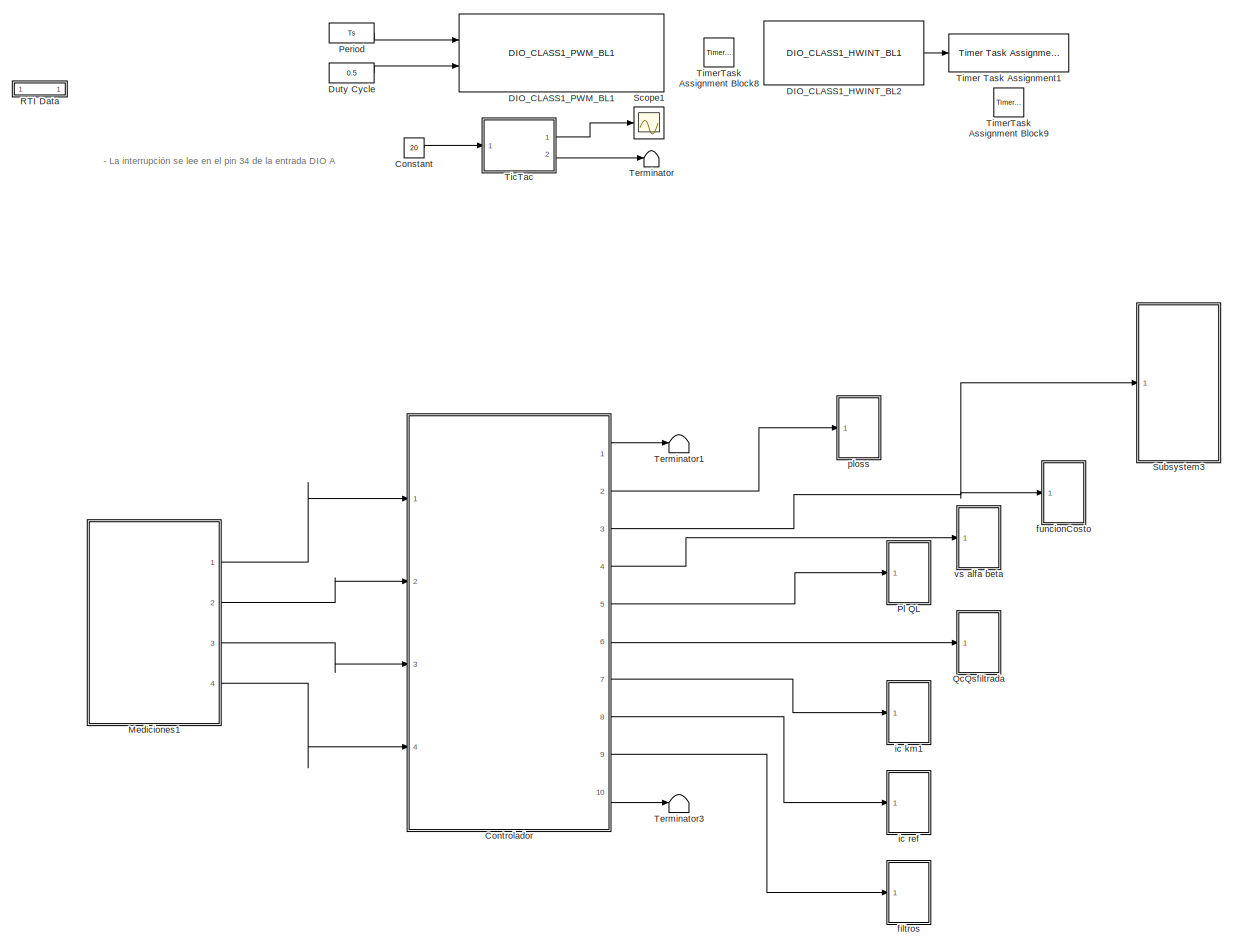
[diagram: root canvas - part 1/1, most of the canvas]
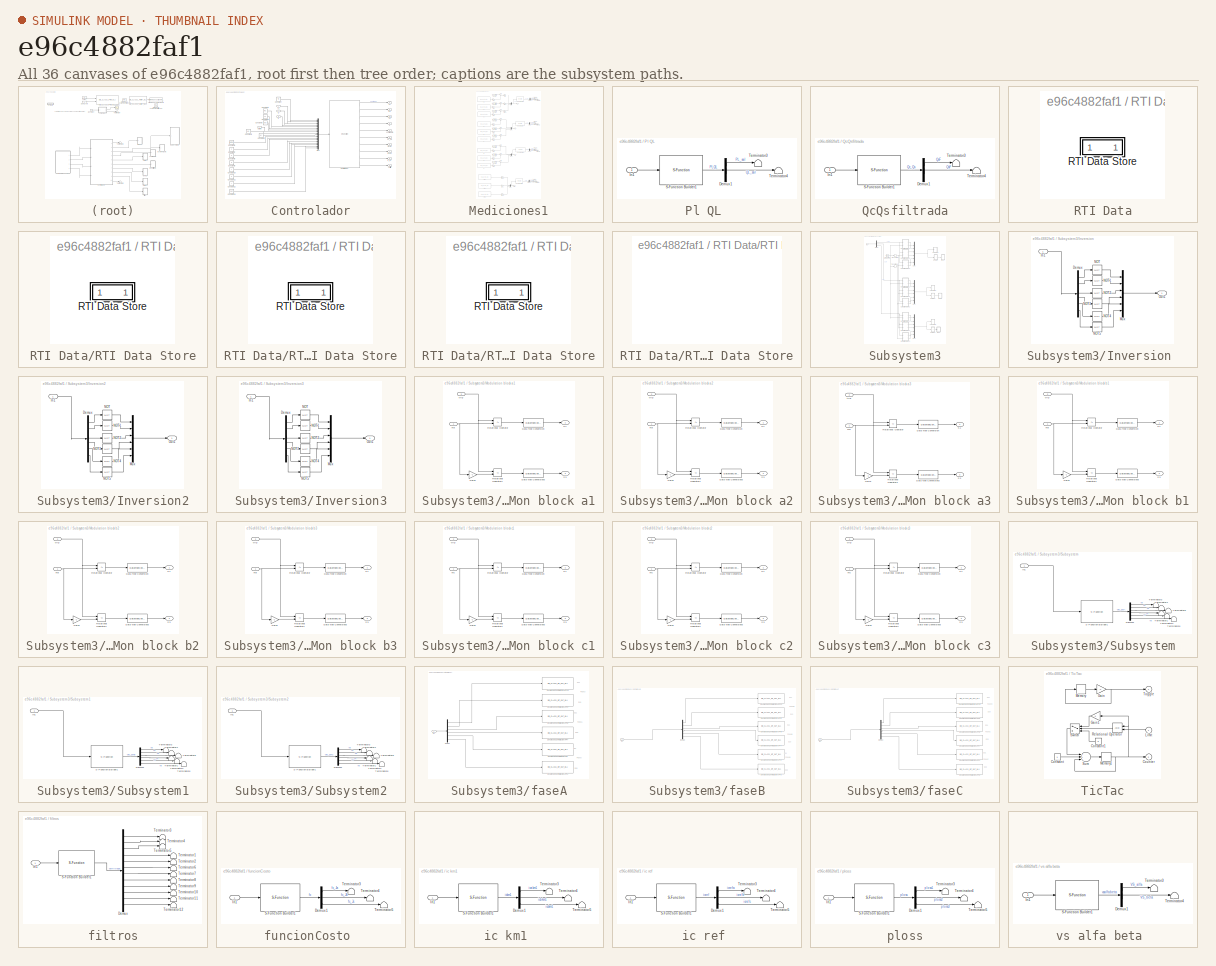
[diagram: thumbnail index - all 36 canvases of the model, root first then tree order]
MODEL slx_e96c4882faf1
KIND model
CONFIG AbsTol = auto
CONFIG EnableMultiTasking = off
CONFIG FixedStep = Tm
CONFIG MaxStep = auto
CONFIG MinStep = auto
CONFIG PostLoadFcn = , if any(exist('dsrtsu_mdlpostloadfcn', 'file') == [2, 3, 6]), try dsrtsu_mdlpostloadfcn('Execute', bdroot); catch fprintf('Error in PostLoadFcn (dsrtsu_mdlpostloadfcn) for model "%s":\n %s\n', bdroot, lasterr); end, end, \n
CONFIG RelTol = 1e-3
CONFIG SampleTimeConstraint = Unconstrained
CONFIG Solver = FixedStepDiscrete
CONFIG SolverName = FixedStepDiscrete
CONFIG StartTime = 0.0
CONFIG StopTime = inf
BLOCK [Constant] Constant
  Value = 20
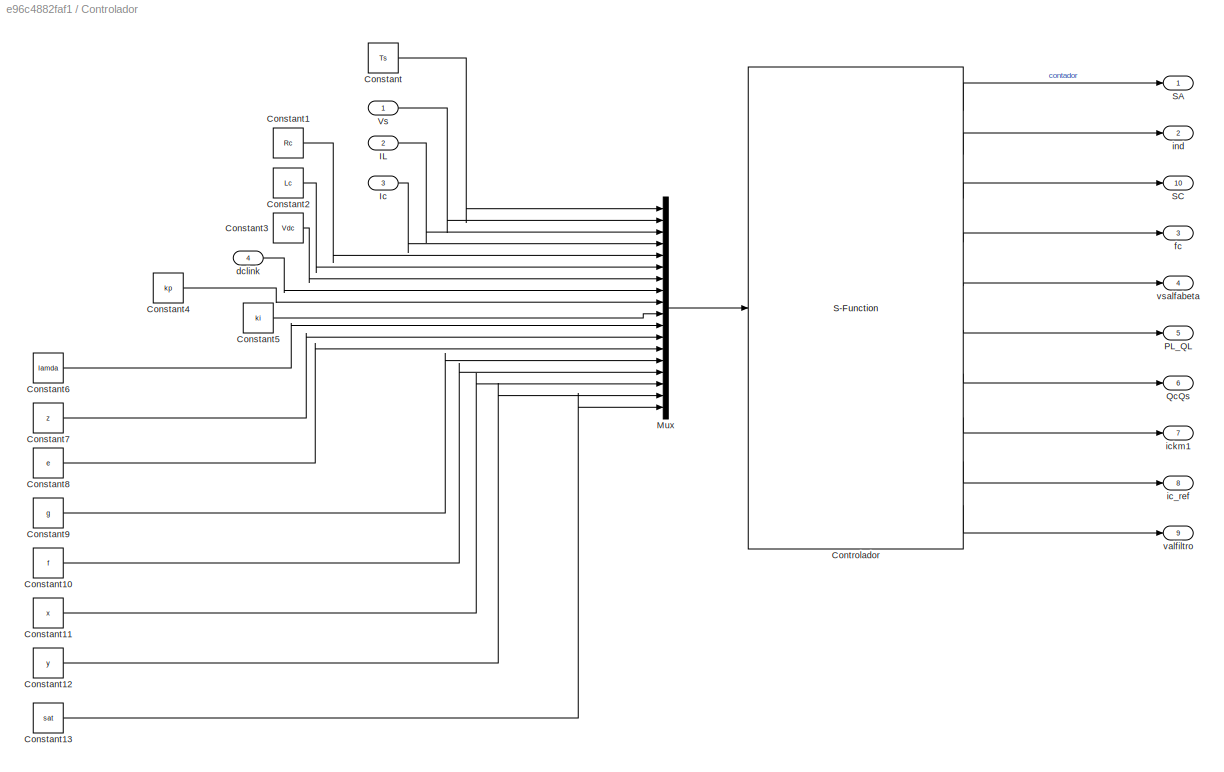
BLOCK [SubSystem] Controlador
  Ports = [4, 10]
  RequestExecContextInheritance = off
BLOCK [Constant] Controlador/Constant
  Value = Ts
BLOCK [Constant] Controlador/Constant1
  Value = Rc
BLOCK [Constant] Controlador/Constant10
  Value = f
BLOCK [Constant] Controlador/Constant11
  Value = x
BLOCK [Constant] Controlador/Constant12
  Value = y
BLOCK [Constant] Controlador/Constant13
  Value = sat
BLOCK [Constant] Controlador/Constant2
  Value = Lc
BLOCK [Constant] Controlador/Constant3
  Value = Vdc
BLOCK [Constant] Controlador/Constant4
  Value = kp
BLOCK [Constant] Controlador/Constant5
  Value = ki
BLOCK [Constant] Controlador/Constant6
  Value = lamda
BLOCK [Constant] Controlador/Constant7
  Value = z
BLOCK [Constant] Controlador/Constant8
  Value = e
BLOCK [Constant] Controlador/Constant9
  Value = g
BLOCK [S-Function] Controlador/Controlador
  CopyFcn = set_param(gcbh,'LinkStatus','none')
  EnableBusSupport = off
  FunctionName = Control_APF7_algoritmo
  InitFcn = try, set_param(gcb,'FunctionName','Control_APF7_algoritmo'), end
  OpenFcn = sfunctionwizard(gcbh)
  Ports = [1, 10]
  PreSaveFcn = try, set_param(gcb,'FunctionName','Control_APF7_algoritmo'), end
  SFcnIsStateOwnerBlock = off
  SFunctionDeploymentMode = off
  SFunctionModules = Control_APF7_algoritmo_wrapper
BLOCK [Inport] Controlador/IL
  IconDisplay = Port number
  Port = 2
BLOCK [Inport] Controlador/Ic
  IconDisplay = Port number
  Port = 3
BLOCK [Mux] Controlador/Mux
  DisplayOption = bar
  Inputs = 18
  Ports = [18, 1]
BLOCK [Outport] Controlador/PL_QL
  IconDisplay = Port number
  Port = 5
BLOCK [Outport] Controlador/QcQs
  IconDisplay = Port number
  Port = 6
BLOCK [Outport] Controlador/SA
  IconDisplay = Port number
BLOCK [Outport] Controlador/SC
  IconDisplay = Port number
  Port = 10
BLOCK [Inport] Controlador/Vs
  IconDisplay = Port number
BLOCK [Inport] Controlador/dclink
  IconDisplay = Port number
  Port = 4
BLOCK [Outport] Controlador/fc
  IconDisplay = Port number
  Port = 3
BLOCK [Outport] Controlador/ic_ref
  IconDisplay = Port number
  Port = 8
BLOCK [Outport] Controlador/ickm1
  IconDisplay = Port number
  Port = 7
BLOCK [Outport] Controlador/ind
  IconDisplay = Port number
  Port = 2
BLOCK [Outport] Controlador/valfiltro
  IconDisplay = Port number
  Port = 9
BLOCK [Outport] Controlador/vsalfabeta
  IconDisplay = Port number
  Port = 4
BLOCK [Reference] DIO_CLASS1_HWINT_BL2  REF=rti1202lib_dio_class1/DIO_CLASS1_HWINT_BL1
  Ports = [0, 1]
  SourceBlock = rti1202lib_dio_class1/DIO_CLASS1_HWINT_BL1
  SourceType = RTI
BLOCK [Reference] DIO_CLASS1_PWM_BL1  REF=rti1202lib_dio_class1/DIO_CLASS1_PWM_BL1
  Ports = [2]
  SourceBlock = rti1202lib_dio_class1/DIO_CLASS1_PWM_BL1
  SourceType = RTI
BLOCK [Constant] Duty Cycle
  Value = 0.5
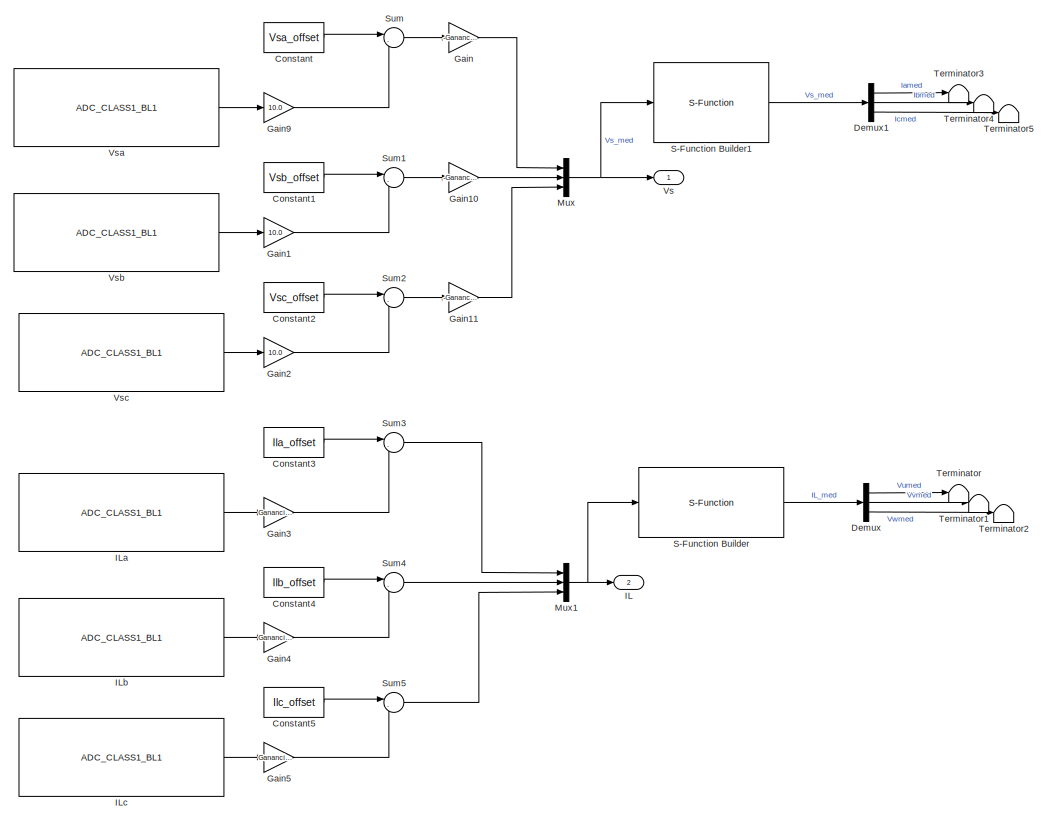
[diagram: Mediciones1 - part 1/2, full width, top band]
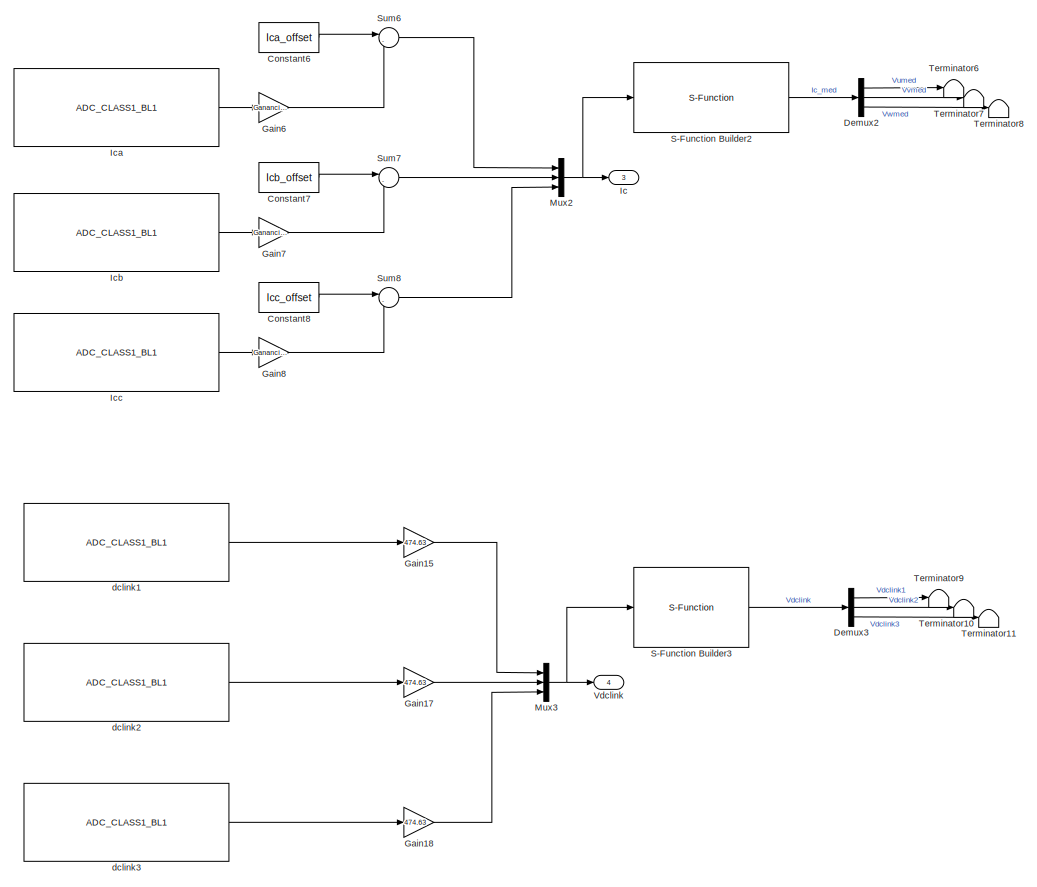
[diagram: Mediciones1 - part 2/2, full width, bottom band]
BLOCK [SubSystem] Mediciones1
  Ports = [0, 4]
  RequestExecContextInheritance = off
BLOCK [Constant] Mediciones1/Constant
  Value = Vsa_offset
BLOCK [Constant] Mediciones1/Constant1
  Value = Vsb_offset
BLOCK [Constant] Mediciones1/Constant2
  Value = Vsc_offset
BLOCK [Constant] Mediciones1/Constant3
  Value = Ila_offset
BLOCK [Constant] Mediciones1/Constant4
  Value = Ilb_offset
BLOCK [Constant] Mediciones1/Constant5
  Value = Ilc_offset
BLOCK [Constant] Mediciones1/Constant6
  Value = Ica_offset
BLOCK [Constant] Mediciones1/Constant7
  Value = Icb_offset
BLOCK [Constant] Mediciones1/Constant8
  Value = Icc_offset
BLOCK [Demux] Mediciones1/Demux
  DisplayOption = bar
  Outputs = 3
  Ports = [1, 3]
BLOCK [Demux] Mediciones1/Demux1
  DisplayOption = bar
  Outputs = 3
  Ports = [1, 3]
BLOCK [Demux] Mediciones1/Demux2
  DisplayOption = bar
  Outputs = 3
  Ports = [1, 3]
BLOCK [Demux] Mediciones1/Demux3
  DisplayOption = bar
  Outputs = 3
  Ports = [1, 3]
BLOCK [Gain] Mediciones1/Gain
  Gain = -Ganancia_Vsa
  OutDataTypeStr = Inherit: Inherit via internal rule
  ParamDataTypeStr = Inherit: Inherit via internal rule
  SaturateOnIntegerOverflow = off
BLOCK [Gain] Mediciones1/Gain1
  Gain = 10.0
  OutDataTypeStr = Inherit: Inherit via internal rule
  ParamDataTypeStr = Inherit: Inherit via internal rule
  SaturateOnIntegerOverflow = off
BLOCK [Gain] Mediciones1/Gain10
  Gain = -Ganancia_Vsb
  OutDataTypeStr = Inherit: Inherit via internal rule
  ParamDataTypeStr = Inherit: Inherit via internal rule
  SaturateOnIntegerOverflow = off
BLOCK [Gain] Mediciones1/Gain11
  Gain = -Ganancia_Vsc
  OutDataTypeStr = Inherit: Inherit via internal rule
  ParamDataTypeStr = Inherit: Inherit via internal rule
  SaturateOnIntegerOverflow = off
BLOCK [Gain] Mediciones1/Gain15
  Gain = 474.63
  OutDataTypeStr = Inherit: Inherit via internal rule
  ParamDataTypeStr = Inherit: Inherit via internal rule
  SaturateOnIntegerOverflow = off
BLOCK [Gain] Mediciones1/Gain17
  Gain = 474.63
  OutDataTypeStr = Inherit: Inherit via internal rule
  ParamDataTypeStr = Inherit: Inherit via internal rule
  SaturateOnIntegerOverflow = off
BLOCK [Gain] Mediciones1/Gain18
  Gain = 474.63
  OutDataTypeStr = Inherit: Inherit via internal rule
  ParamDataTypeStr = Inherit: Inherit via internal rule
  SaturateOnIntegerOverflow = off
BLOCK [Gain] Mediciones1/Gain2
  Gain = 10.0
  OutDataTypeStr = Inherit: Inherit via internal rule
  ParamDataTypeStr = Inherit: Inherit via internal rule
  SaturateOnIntegerOverflow = off
BLOCK [Gain] Mediciones1/Gain3
  Gain = Ganancia_Ila
  OutDataTypeStr = Inherit: Inherit via internal rule
  ParamDataTypeStr = Inherit: Inherit via internal rule
  SaturateOnIntegerOverflow = off
BLOCK [Gain] Mediciones1/Gain4
  Gain = Ganancia_Ilb
  OutDataTypeStr = Inherit: Inherit via internal rule
  ParamDataTypeStr = Inherit: Inherit via internal rule
  SaturateOnIntegerOverflow = off
BLOCK [Gain] Mediciones1/Gain5
  Gain = Ganancia_Ilc
  OutDataTypeStr = Inherit: Inherit via internal rule
  ParamDataTypeStr = Inherit: Inherit via internal rule
  SaturateOnIntegerOverflow = off
BLOCK [Gain] Mediciones1/Gain6
  Gain = Ganancia_Ica
  OutDataTypeStr = Inherit: Inherit via internal rule
  ParamDataTypeStr = Inherit: Inherit via internal rule
  SaturateOnIntegerOverflow = off
BLOCK [Gain] Mediciones1/Gain7
  Gain = Ganancia_Icb
  OutDataTypeStr = Inherit: Inherit via internal rule
  ParamDataTypeStr = Inherit: Inherit via internal rule
  SaturateOnIntegerOverflow = off
BLOCK [Gain] Mediciones1/Gain8
  Gain = Ganancia_Icc
  OutDataTypeStr = Inherit: Inherit via internal rule
  ParamDataTypeStr = Inherit: Inherit via internal rule
  SaturateOnIntegerOverflow = off
BLOCK [Gain] Mediciones1/Gain9
  Gain = 10.0
  OutDataTypeStr = Inherit: Inherit via internal rule
  ParamDataTypeStr = Inherit: Inherit via internal rule
  SaturateOnIntegerOverflow = off
BLOCK [Outport] Mediciones1/IL
  IconDisplay = Port number
  Port = 2
BLOCK [Reference] Mediciones1/ILa  REF=rti1202lib_adc_class1/ADC_CLASS1_BL1
  Ports = [0, 1]
  SourceBlock = rti1202lib_adc_class1/ADC_CLASS1_BL1
  SourceType = RTI
BLOCK [Reference] Mediciones1/ILb   REF=rti1202lib_adc_class1/ADC_CLASS1_BL1
  Ports = [0, 1]
  SourceBlock = rti1202lib_adc_class1/ADC_CLASS1_BL1
  SourceType = RTI
BLOCK [Reference] Mediciones1/ILc  REF=rti1202lib_adc_class1/ADC_CLASS1_BL1
  Ports = [0, 1]
  SourceBlock = rti1202lib_adc_class1/ADC_CLASS1_BL1
  SourceType = RTI
BLOCK [Outport] Mediciones1/Ic
  IconDisplay = Port number
  Port = 3
BLOCK [Reference] Mediciones1/Ica  REF=rti1202lib_adc_class1/ADC_CLASS1_BL1
  Ports = [0, 1]
  SourceBlock = rti1202lib_adc_class1/ADC_CLASS1_BL1
  SourceType = RTI
BLOCK [Reference] Mediciones1/Icb  REF=rti1202lib_adc_class1/ADC_CLASS1_BL1
  Ports = [0, 1]
  SourceBlock = rti1202lib_adc_class1/ADC_CLASS1_BL1
  SourceType = RTI
BLOCK [Reference] Mediciones1/Icc  REF=rti1202lib_adc_class1/ADC_CLASS1_BL1
  Ports = [0, 1]
  SourceBlock = rti1202lib_adc_class1/ADC_CLASS1_BL1
  SourceType = RTI
BLOCK [Mux] Mediciones1/Mux
  DisplayOption = bar
  Inputs = 3
  Ports = [3, 1]
BLOCK [Mux] Mediciones1/Mux1
  DisplayOption = bar
  Inputs = 3
  Ports = [3, 1]
BLOCK [Mux] Mediciones1/Mux2
  DisplayOption = bar
  Inputs = 3
  Ports = [3, 1]
BLOCK [Mux] Mediciones1/Mux3
  DisplayOption = bar
  Inputs = 3
  Ports = [3, 1]
BLOCK [S-Function] Mediciones1/S-Function Builder
  CopyFcn = set_param(gcbh,'LinkStatus','none')
  EnableBusSupport = off
  FunctionName = seguidor
  InitFcn = try, set_param(gcb,'FunctionName','seguidor'), end
  OpenFcn = sfunctionwizard(gcbh)
  Ports = [1, 1]
  PreSaveFcn = try, set_param(gcb,'FunctionName','seguidor'), end
  SFcnIsStateOwnerBlock = off
  SFunctionDeploymentMode = off
  SFunctionModules = seguidor_wrapper
BLOCK [S-Function] Mediciones1/S-Function Builder1
  CopyFcn = set_param(gcbh,'LinkStatus','none')
  EnableBusSupport = off
  FunctionName = seguidor
  InitFcn = try, set_param(gcb,'FunctionName','seguidor'), end
  OpenFcn = sfunctionwizard(gcbh)
  Ports = [1, 1]
  PreSaveFcn = try, set_param(gcb,'FunctionName','seguidor'), end
  SFcnIsStateOwnerBlock = off
  SFunctionDeploymentMode = off
  SFunctionModules = seguidor_wrapper
BLOCK [S-Function] Mediciones1/S-Function Builder2
  CopyFcn = set_param(gcbh,'LinkStatus','none')
  EnableBusSupport = off
  FunctionName = seguidor
  InitFcn = try, set_param(gcb,'FunctionName','seguidor'), end
  OpenFcn = sfunctionwizard(gcbh)
  Ports = [1, 1]
  PreSaveFcn = try, set_param(gcb,'FunctionName','seguidor'), end
  SFcnIsStateOwnerBlock = off
  SFunctionDeploymentMode = off
  SFunctionModules = seguidor_wrapper
BLOCK [S-Function] Mediciones1/S-Function Builder3
  CopyFcn = set_param(gcbh,'LinkStatus','none')
  EnableBusSupport = off
  FunctionName = seguidor
  InitFcn = try, set_param(gcb,'FunctionName','seguidor'), end
  OpenFcn = sfunctionwizard(gcbh)
  Ports = [1, 1]
  PreSaveFcn = try, set_param(gcb,'FunctionName','seguidor'), end
  SFcnIsStateOwnerBlock = off
  SFunctionDeploymentMode = off
  SFunctionModules = seguidor_wrapper
BLOCK [Sum] Mediciones1/Sum
  IconShape = round
  InputSameDT = off
  Inputs = |-+
  OutDataTypeStr = Inherit: Inherit via internal rule
  Ports = [2, 1]
  SaturateOnIntegerOverflow = off
BLOCK [Sum] Mediciones1/Sum1
  IconShape = round
  InputSameDT = off
  Inputs = |-+
  OutDataTypeStr = Inherit: Inherit via internal rule
  Ports = [2, 1]
  SaturateOnIntegerOverflow = off
BLOCK [Sum] Mediciones1/Sum2
  IconShape = round
  InputSameDT = off
  Inputs = |-+
  OutDataTypeStr = Inherit: Inherit via internal rule
  Ports = [2, 1]
  SaturateOnIntegerOverflow = off
BLOCK [Sum] Mediciones1/Sum3
  IconShape = round
  InputSameDT = off
  Inputs = |-+
  OutDataTypeStr = Inherit: Inherit via internal rule
  Ports = [2, 1]
  SaturateOnIntegerOverflow = off
BLOCK [Sum] Mediciones1/Sum4
  IconShape = round
  InputSameDT = off
  Inputs = |-+
  OutDataTypeStr = Inherit: Inherit via internal rule
  Ports = [2, 1]
  SaturateOnIntegerOverflow = off
BLOCK [Sum] Mediciones1/Sum5
  IconShape = round
  InputSameDT = off
  Inputs = |-+
  OutDataTypeStr = Inherit: Inherit via internal rule
  Ports = [2, 1]
  SaturateOnIntegerOverflow = off
BLOCK [Sum] Mediciones1/Sum6
  IconShape = round
  InputSameDT = off
  Inputs = |-+
  OutDataTypeStr = Inherit: Inherit via internal rule
  Ports = [2, 1]
  SaturateOnIntegerOverflow = off
BLOCK [Sum] Mediciones1/Sum7
  IconShape = round
  InputSameDT = off
  Inputs = |-+
  OutDataTypeStr = Inherit: Inherit via internal rule
  Ports = [2, 1]
  SaturateOnIntegerOverflow = off
BLOCK [Sum] Mediciones1/Sum8
  IconShape = round
  InputSameDT = off
  Inputs = |-+
  OutDataTypeStr = Inherit: Inherit via internal rule
  Ports = [2, 1]
  SaturateOnIntegerOverflow = off
BLOCK [Terminator] Mediciones1/Terminator
BLOCK [Terminator] Mediciones1/Terminator1
BLOCK [Terminator] Mediciones1/Terminator10
BLOCK [Terminator] Mediciones1/Terminator11
BLOCK [Terminator] Mediciones1/Terminator2
BLOCK [Terminator] Mediciones1/Terminator3
BLOCK [Terminator] Mediciones1/Terminator4
BLOCK [Terminator] Mediciones1/Terminator5
BLOCK [Terminator] Mediciones1/Terminator6
BLOCK [Terminator] Mediciones1/Terminator7
BLOCK [Terminator] Mediciones1/Terminator8
BLOCK [Terminator] Mediciones1/Terminator9
BLOCK [Outport] Mediciones1/Vdclink
  IconDisplay = Port number
  Port = 4
BLOCK [Outport] Mediciones1/Vs
  IconDisplay = Port number
BLOCK [Reference] Mediciones1/Vsa  REF=rti1202lib_adc_class1/ADC_CLASS1_BL1
  Ports = [0, 1]
  SourceBlock = rti1202lib_adc_class1/ADC_CLASS1_BL1
  SourceType = RTI
BLOCK [Reference] Mediciones1/Vsb  REF=rti1202lib_adc_class1/ADC_CLASS1_BL1
  Ports = [0, 1]
  SourceBlock = rti1202lib_adc_class1/ADC_CLASS1_BL1
  SourceType = RTI
BLOCK [Reference] Mediciones1/Vsc  REF=rti1202lib_adc_class1/ADC_CLASS1_BL1
  Ports = [0, 1]
  SourceBlock = rti1202lib_adc_class1/ADC_CLASS1_BL1
  SourceType = RTI
BLOCK [Reference] Mediciones1/dclink1  REF=rti1202lib_adc_class1/ADC_CLASS1_BL1
  Ports = [0, 1]
  SourceBlock = rti1202lib_adc_class1/ADC_CLASS1_BL1
  SourceType = RTI
BLOCK [Reference] Mediciones1/dclink2  REF=rti1202lib_adc_class1/ADC_CLASS1_BL1
  Ports = [0, 1]
  SourceBlock = rti1202lib_adc_class1/ADC_CLASS1_BL1
  SourceType = RTI
BLOCK [Reference] Mediciones1/dclink3  REF=rti1202lib_adc_class1/ADC_CLASS1_BL1
  Ports = [0, 1]
  SourceBlock = rti1202lib_adc_class1/ADC_CLASS1_BL1
  SourceType = RTI
BLOCK [Constant] Period
  Value = Ts
BLOCK [SubSystem] Pl QL 
  Ports = [1]
  RequestExecContextInheritance = off
BLOCK [Demux] Pl QL /Demux1
  DisplayOption = bar
  Outputs = 2
  Ports = [1, 2]
BLOCK [Inport] Pl QL /In1
  IconDisplay = Port number
BLOCK [S-Function] Pl QL /S-Function Builder1
  CopyFcn = set_param(gcbh,'LinkStatus','none')
  EnableBusSupport = off
  FunctionName = seguidor_2S
  InitFcn = try, set_param(gcb,'FunctionName','seguidor_2S'), end
  OpenFcn = sfunctionwizard(gcbh)
  Ports = [1, 1]
  PreSaveFcn = try, set_param(gcb,'FunctionName','seguidor_2S'), end
  SFcnIsStateOwnerBlock = off
  SFunctionDeploymentMode = off
  SFunctionModules = seguidor_2S_wrapper
BLOCK [Terminator] Pl QL /Terminator3
BLOCK [Terminator] Pl QL /Terminator4
BLOCK [SubSystem] QcQsfiltrada
  Ports = [1]
  RequestExecContextInheritance = off
BLOCK [Demux] QcQsfiltrada/Demux1
  DisplayOption = bar
  Outputs = 2
  Ports = [1, 2]
BLOCK [Inport] QcQsfiltrada/In1
  IconDisplay = Port number
BLOCK [S-Function] QcQsfiltrada/S-Function Builder1
  CopyFcn = set_param(gcbh,'LinkStatus','none')
  EnableBusSupport = off
  FunctionName = seguidor_2S
  InitFcn = try, set_param(gcb,'FunctionName','seguidor_2S'), end
  OpenFcn = sfunctionwizard(gcbh)
  Ports = [1, 1]
  PreSaveFcn = try, set_param(gcb,'FunctionName','seguidor_2S'), end
  SFcnIsStateOwnerBlock = off
  SFunctionDeploymentMode = off
  SFunctionModules = seguidor_2S_wrapper
BLOCK [Terminator] QcQsfiltrada/Terminator3
BLOCK [Terminator] QcQsfiltrada/Terminator4
BLOCK [SubSystem] RTI Data
  CopyFcn = if exist('rtidc'), try,  rtidc('DataHostBlockClbCopy', gcbh); catch, disp(['Warning: ''CopyFcn'' for RTI Data block failed: ' lasterr]); end, end,
  DeleteFcn = if exist('rtidc'), try,  rtidc('DataHostBlockClbDelete', gcbh); catch, disp(['Warning: ''DeleteFcn'' for RTI Data block failed: ' lasterr]); end, end,
  LoadFcn = if exist('rtidc'), try,  rtidc('DataHostBlockClbLoad', gcbh); catch, disp(['Warning: ''LoadFcn'' for RTI Data block failed: ' lasterr]); end, end,
  ModelCloseFcn = if exist('rtidc'), try,  rtidc('DataHostBlockClbModelClose', gcbh); catch, disp(['Warning: ''ModelCloseFcn'' for RTI Data block failed: ' lasterr]); end, end,
  NameChangeFcn = if exist('rtidc'), try,  rtidc('DataHostBlockClbNameChange', gcbh); catch, disp(['Warning: ''NameChangeFcn'' for RTI Data block failed: ' lasterr]); end, end,
  Ports = []
  PostSaveFcn = if exist('rtidc'), try,  rtidc('DataHostBlockClbPostSave', gcbh); catch, disp(['Warning: ''PostSaveFcn'' for RTI Data block failed: ' lasterr]); end, end,
  PreSaveFcn = if exist('rtidc'), try,  rtidc('DataHostBlockClbPreSave', gcbh); catch, disp(['Warning: ''PreSaveFcn'' for RTI Data block failed: ' lasterr]); end, end,
  RequestExecContextInheritance = off
  Tag = struct('RTIDataServer',struct('RTIDataServerVs','2','RTIModelDescription','struct(''main'',''Control_APF7_nuevo_MicroLabBox'',''sub'','''',''isMp'',0)'))
BLOCK [SubSystem] RTI Data/RTI Data Store
  Ports = []
  RequestExecContextInheritance = off
  Tag = struct('private',struct('version',struct('dsVer',uint32(2),'dsVerCreation',uint32(2),'RTI',struct('ver','7.10','type','RTI1202')),'access',struct('type','Model','isPerm',1,'created',['09-Feb-2019 11:07:17'],'modified',['07-Aug-2020 15:11:09'],'location','')),'public',struct('main',struct('data',[]),'sub',struct('name',{{'Control_APF7_nuevo_MicroLabBox'}},'data',{{struct('TH',struct('thTaskInfo',st...<+1229ch>
BLOCK [SubSystem] RTI Data/RTI Data Store/RTI Data Store
  Ports = []
  RequestExecContextInheritance = off
BLOCK [SubSystem] RTI Data/RTI Data Store/RTI Data Store/RTI Data Store
  Ports = []
  RequestExecContextInheritance = off
BLOCK [SubSystem] RTI Data/RTI Data Store/RTI Data Store/RTI Data Store/RTI Data Store
  Ports = []
  RequestExecContextInheritance = off
BLOCK [Scope] Scope1
  Floating = off
  NumInputPorts = 1
  Ports = [1]
  ScopeSpecificationString = Simulink.scopes.TimeScopeBlockCfg('CurrentConfiguration', extmgr.ConfigurationSet(extmgr.Configuration('Core','General UI',true),extmgr.Configuration('Core','Source UI',true),extmgr.Configuration('Sources','WiredSimulink',true,'DataLoggingSaveFormat','StructureWithTime','DataLoggingLimitDataPoints',true,'DataLoggingDecimation','1','DataLoggingDecimateData',true,'DataLoggingVariableName','ScopeData...<+911ch>
BLOCK [SubSystem] Subsystem3
  Ports = [1]
  RequestExecContextInheritance = off
BLOCK [Demux] Subsystem3/Demux
  DisplayOption = bar
  Outputs = 3
  Ports = [1, 3]
BLOCK [Inport] Subsystem3/In1
  IconDisplay = Port number
BLOCK [SubSystem] Subsystem3/Inversion 
  Ports = [1, 1]
  RequestExecContextInheritance = off
BLOCK [Demux] Subsystem3/Inversion /Demux
  DisplayOption = bar
  Outputs = 6
  Ports = [1, 6]
BLOCK [Inport] Subsystem3/Inversion /In1
  IconDisplay = Port number
BLOCK [Mux] Subsystem3/Inversion /Mux
  DisplayOption = bar
  Inputs = 6
  Ports = [6, 1]
BLOCK [Logic] Subsystem3/Inversion /NOT
  AllPortsSameDT = off
  IconShape = distinctive
  Operator = NOT
  OutDataTypeStr = boolean
  Ports = [1, 1]
BLOCK [Logic] Subsystem3/Inversion /NOT1
  AllPortsSameDT = off
  IconShape = distinctive
  Operator = NOT
  OutDataTypeStr = boolean
  Ports = [1, 1]
BLOCK [Logic] Subsystem3/Inversion /NOT2
  AllPortsSameDT = off
  IconShape = distinctive
  Operator = NOT
  OutDataTypeStr = boolean
  Ports = [1, 1]
BLOCK [Logic] Subsystem3/Inversion /NOT3
  AllPortsSameDT = off
  IconShape = distinctive
  Operator = NOT
  OutDataTypeStr = boolean
  Ports = [1, 1]
BLOCK [Logic] Subsystem3/Inversion /NOT4
  AllPortsSameDT = off
  IconShape = distinctive
  Operator = NOT
  OutDataTypeStr = boolean
  Ports = [1, 1]
BLOCK [Logic] Subsystem3/Inversion /NOT5
  AllPortsSameDT = off
  IconShape = distinctive
  Operator = NOT
  OutDataTypeStr = boolean
  Ports = [1, 1]
BLOCK [Outport] Subsystem3/Inversion /Out1
  IconDisplay = Port number
BLOCK [SubSystem] Subsystem3/Inversion2
  Ports = [1, 1]
  RequestExecContextInheritance = off
BLOCK [Demux] Subsystem3/Inversion2/Demux
  DisplayOption = bar
  Outputs = 6
  Ports = [1, 6]
BLOCK [Inport] Subsystem3/Inversion2/In1
  IconDisplay = Port number
BLOCK [Mux] Subsystem3/Inversion2/Mux
  DisplayOption = bar
  Inputs = 6
  Ports = [6, 1]
BLOCK [Logic] Subsystem3/Inversion2/NOT
  AllPortsSameDT = off
  IconShape = distinctive
  Operator = NOT
  OutDataTypeStr = boolean
  Ports = [1, 1]
BLOCK [Logic] Subsystem3/Inversion2/NOT1
  AllPortsSameDT = off
  IconShape = distinctive
  Operator = NOT
  OutDataTypeStr = boolean
  Ports = [1, 1]
BLOCK [Logic] Subsystem3/Inversion2/NOT2
  AllPortsSameDT = off
  IconShape = distinctive
  Operator = NOT
  OutDataTypeStr = boolean
  Ports = [1, 1]
BLOCK [Logic] Subsystem3/Inversion2/NOT3
  AllPortsSameDT = off
  IconShape = distinctive
  Operator = NOT
  OutDataTypeStr = boolean
  Ports = [1, 1]
BLOCK [Logic] Subsystem3/Inversion2/NOT4
  AllPortsSameDT = off
  IconShape = distinctive
  Operator = NOT
  OutDataTypeStr = boolean
  Ports = [1, 1]
BLOCK [Logic] Subsystem3/Inversion2/NOT5
  AllPortsSameDT = off
  IconShape = distinctive
  Operator = NOT
  OutDataTypeStr = boolean
  Ports = [1, 1]
BLOCK [Outport] Subsystem3/Inversion2/Out1
  IconDisplay = Port number
BLOCK [SubSystem] Subsystem3/Inversion3
  Ports = [1, 1]
  RequestExecContextInheritance = off
BLOCK [Demux] Subsystem3/Inversion3/Demux
  DisplayOption = bar
  Outputs = 6
  Ports = [1, 6]
BLOCK [Inport] Subsystem3/Inversion3/In1
  IconDisplay = Port number
BLOCK [Mux] Subsystem3/Inversion3/Mux
  DisplayOption = bar
  Inputs = 6
  Ports = [6, 1]
BLOCK [Logic] Subsystem3/Inversion3/NOT
  AllPortsSameDT = off
  IconShape = distinctive
  Operator = NOT
  OutDataTypeStr = boolean
  Ports = [1, 1]
BLOCK [Logic] Subsystem3/Inversion3/NOT1
  AllPortsSameDT = off
  IconShape = distinctive
  Operator = NOT
  OutDataTypeStr = boolean
  Ports = [1, 1]
BLOCK [Logic] Subsystem3/Inversion3/NOT2
  AllPortsSameDT = off
  IconShape = distinctive
  Operator = NOT
  OutDataTypeStr = boolean
  Ports = [1, 1]
BLOCK [Logic] Subsystem3/Inversion3/NOT3
  AllPortsSameDT = off
  IconShape = distinctive
  Operator = NOT
  OutDataTypeStr = boolean
  Ports = [1, 1]
BLOCK [Logic] Subsystem3/Inversion3/NOT4
  AllPortsSameDT = off
  IconShape = distinctive
  Operator = NOT
  OutDataTypeStr = boolean
  Ports = [1, 1]
BLOCK [Logic] Subsystem3/Inversion3/NOT5
  AllPortsSameDT = off
  IconShape = distinctive
  Operator = NOT
  OutDataTypeStr = boolean
  Ports = [1, 1]
BLOCK [Outport] Subsystem3/Inversion3/Out1
  IconDisplay = Port number
BLOCK [SubSystem] Subsystem3/Modulation block a1
  Ports = [2, 2]
  RequestExecContextInheritance = off
BLOCK [DataTypeConversion] Subsystem3/Modulation block a1/Data Type Conversion
  OutDataTypeStr = double
  RndMeth = Floor
  SaturateOnIntegerOverflow = off
BLOCK [DataTypeConversion] Subsystem3/Modulation block a1/Data Type Conversion3
  OutDataTypeStr = double
  RndMeth = Floor
  SaturateOnIntegerOverflow = off
BLOCK [Gain] Subsystem3/Modulation block a1/Gain1
  Gain = -1
  OutDataTypeStr = Inherit: Inherit via internal rule
  ParamDataTypeStr = Inherit: Inherit via internal rule
  SaturateOnIntegerOverflow = off
BLOCK [RelationalOperator] Subsystem3/Modulation block a1/Relational Operator
  InputSameDT = off
  Operator = <=
  OutDataTypeStr = boolean
  Ports = [2, 1]
BLOCK [RelationalOperator] Subsystem3/Modulation block a1/Relational Operator2
  InputSameDT = off
  Operator = <=
  OutDataTypeStr = boolean
  Ports = [2, 1]
BLOCK [Outport] Subsystem3/Modulation block a1/S1
  IconDisplay = Port number
BLOCK [Outport] Subsystem3/Modulation block a1/S3
  IconDisplay = Port number
  Port = 2
BLOCK [Inport] Subsystem3/Modulation block a1/ma
  IconDisplay = Port number
BLOCK [Inport] Subsystem3/Modulation block a1/trig
  IconDisplay = Port number
  Port = 2
BLOCK [SubSystem] Subsystem3/Modulation block a2
  Ports = [2, 2]
  RequestExecContextInheritance = off
BLOCK [DataTypeConversion] Subsystem3/Modulation block a2/Data Type Conversion
  OutDataTypeStr = double
  RndMeth = Floor
  SaturateOnIntegerOverflow = off
BLOCK [DataTypeConversion] Subsystem3/Modulation block a2/Data Type Conversion3
  OutDataTypeStr = double
  RndMeth = Floor
  SaturateOnIntegerOverflow = off
BLOCK [Gain] Subsystem3/Modulation block a2/Gain1
  Gain = -1
  OutDataTypeStr = Inherit: Inherit via internal rule
  ParamDataTypeStr = Inherit: Inherit via internal rule
  SaturateOnIntegerOverflow = off
BLOCK [RelationalOperator] Subsystem3/Modulation block a2/Relational Operator
  InputSameDT = off
  Operator = <=
  OutDataTypeStr = boolean
  Ports = [2, 1]
BLOCK [RelationalOperator] Subsystem3/Modulation block a2/Relational Operator2
  InputSameDT = off
  Operator = <=
  OutDataTypeStr = boolean
  Ports = [2, 1]
BLOCK [Outport] Subsystem3/Modulation block a2/S1
  IconDisplay = Port number
BLOCK [Outport] Subsystem3/Modulation block a2/S3
  IconDisplay = Port number
  Port = 2
BLOCK [Inport] Subsystem3/Modulation block a2/ma
  IconDisplay = Port number
BLOCK [Inport] Subsystem3/Modulation block a2/trig
  IconDisplay = Port number
  Port = 2
BLOCK [SubSystem] Subsystem3/Modulation block a3
  Ports = [2, 2]
  RequestExecContextInheritance = off
BLOCK [DataTypeConversion] Subsystem3/Modulation block a3/Data Type Conversion
  OutDataTypeStr = double
  RndMeth = Floor
  SaturateOnIntegerOverflow = off
BLOCK [DataTypeConversion] Subsystem3/Modulation block a3/Data Type Conversion3
  OutDataTypeStr = double
  RndMeth = Floor
  SaturateOnIntegerOverflow = off
BLOCK [Gain] Subsystem3/Modulation block a3/Gain1
  Gain = -1
  OutDataTypeStr = Inherit: Inherit via internal rule
  ParamDataTypeStr = Inherit: Inherit via internal rule
  SaturateOnIntegerOverflow = off
BLOCK [RelationalOperator] Subsystem3/Modulation block a3/Relational Operator
  InputSameDT = off
  Operator = <=
  OutDataTypeStr = boolean
  Ports = [2, 1]
BLOCK [RelationalOperator] Subsystem3/Modulation block a3/Relational Operator2
  InputSameDT = off
  Operator = <=
  OutDataTypeStr = boolean
  Ports = [2, 1]
BLOCK [Outport] Subsystem3/Modulation block a3/S1
  IconDisplay = Port number
BLOCK [Outport] Subsystem3/Modulation block a3/S3
  IconDisplay = Port number
  Port = 2
BLOCK [Inport] Subsystem3/Modulation block a3/ma
  IconDisplay = Port number
BLOCK [Inport] Subsystem3/Modulation block a3/trig
  IconDisplay = Port number
  Port = 2
BLOCK [SubSystem] Subsystem3/Modulation block b1
  Ports = [2, 2]
  RequestExecContextInheritance = off
BLOCK [DataTypeConversion] Subsystem3/Modulation block b1/Data Type Conversion
  OutDataTypeStr = double
  RndMeth = Floor
  SaturateOnIntegerOverflow = off
BLOCK [DataTypeConversion] Subsystem3/Modulation block b1/Data Type Conversion3
  OutDataTypeStr = double
  RndMeth = Floor
  SaturateOnIntegerOverflow = off
BLOCK [Gain] Subsystem3/Modulation block b1/Gain1
  Gain = -1
  OutDataTypeStr = Inherit: Inherit via internal rule
  ParamDataTypeStr = Inherit: Inherit via internal rule
  SaturateOnIntegerOverflow = off
BLOCK [RelationalOperator] Subsystem3/Modulation block b1/Relational Operator
  InputSameDT = off
  Operator = <=
  OutDataTypeStr = boolean
  Ports = [2, 1]
BLOCK [RelationalOperator] Subsystem3/Modulation block b1/Relational Operator2
  InputSameDT = off
  Operator = <=
  OutDataTypeStr = boolean
  Ports = [2, 1]
BLOCK [Outport] Subsystem3/Modulation block b1/S1
  IconDisplay = Port number
BLOCK [Outport] Subsystem3/Modulation block b1/S3
  IconDisplay = Port number
  Port = 2
BLOCK [Inport] Subsystem3/Modulation block b1/mb
  IconDisplay = Port number
BLOCK [Inport] Subsystem3/Modulation block b1/trig
  IconDisplay = Port number
  Port = 2
BLOCK [SubSystem] Subsystem3/Modulation block b2
  Ports = [2, 2]
  RequestExecContextInheritance = off
BLOCK [DataTypeConversion] Subsystem3/Modulation block b2/Data Type Conversion
  OutDataTypeStr = double
  RndMeth = Floor
  SaturateOnIntegerOverflow = off
BLOCK [DataTypeConversion] Subsystem3/Modulation block b2/Data Type Conversion3
  OutDataTypeStr = double
  RndMeth = Floor
  SaturateOnIntegerOverflow = off
BLOCK [Gain] Subsystem3/Modulation block b2/Gain1
  Gain = -1
  OutDataTypeStr = Inherit: Inherit via internal rule
  ParamDataTypeStr = Inherit: Inherit via internal rule
  SaturateOnIntegerOverflow = off
BLOCK [RelationalOperator] Subsystem3/Modulation block b2/Relational Operator
  InputSameDT = off
  Operator = <=
  OutDataTypeStr = boolean
  Ports = [2, 1]
BLOCK [RelationalOperator] Subsystem3/Modulation block b2/Relational Operator2
  InputSameDT = off
  Operator = <=
  OutDataTypeStr = boolean
  Ports = [2, 1]
BLOCK [Outport] Subsystem3/Modulation block b2/S1
  IconDisplay = Port number
BLOCK [Outport] Subsystem3/Modulation block b2/S3
  IconDisplay = Port number
  Port = 2
BLOCK [Inport] Subsystem3/Modulation block b2/mb
  IconDisplay = Port number
BLOCK [Inport] Subsystem3/Modulation block b2/trig
  IconDisplay = Port number
  Port = 2
BLOCK [SubSystem] Subsystem3/Modulation block b3
  Ports = [2, 2]
  RequestExecContextInheritance = off
BLOCK [DataTypeConversion] Subsystem3/Modulation block b3/Data Type Conversion
  OutDataTypeStr = double
  RndMeth = Floor
  SaturateOnIntegerOverflow = off
BLOCK [DataTypeConversion] Subsystem3/Modulation block b3/Data Type Conversion3
  OutDataTypeStr = double
  RndMeth = Floor
  SaturateOnIntegerOverflow = off
BLOCK [Gain] Subsystem3/Modulation block b3/Gain1
  Gain = -1
  OutDataTypeStr = Inherit: Inherit via internal rule
  ParamDataTypeStr = Inherit: Inherit via internal rule
  SaturateOnIntegerOverflow = off
BLOCK [RelationalOperator] Subsystem3/Modulation block b3/Relational Operator
  InputSameDT = off
  Operator = <=
  OutDataTypeStr = boolean
  Ports = [2, 1]
BLOCK [RelationalOperator] Subsystem3/Modulation block b3/Relational Operator2
  InputSameDT = off
  Operator = <=
  OutDataTypeStr = boolean
  Ports = [2, 1]
BLOCK [Outport] Subsystem3/Modulation block b3/S1
  IconDisplay = Port number
BLOCK [Outport] Subsystem3/Modulation block b3/S3
  IconDisplay = Port number
  Port = 2
BLOCK [Inport] Subsystem3/Modulation block b3/mb
  IconDisplay = Port number
BLOCK [Inport] Subsystem3/Modulation block b3/trig
  IconDisplay = Port number
  Port = 2
BLOCK [SubSystem] Subsystem3/Modulation block c1
  Ports = [2, 2]
  RequestExecContextInheritance = off
BLOCK [DataTypeConversion] Subsystem3/Modulation block c1/Data Type Conversion
  OutDataTypeStr = double
  RndMeth = Floor
  SaturateOnIntegerOverflow = off
BLOCK [DataTypeConversion] Subsystem3/Modulation block c1/Data Type Conversion3
  OutDataTypeStr = double
  RndMeth = Floor
  SaturateOnIntegerOverflow = off
BLOCK [Gain] Subsystem3/Modulation block c1/Gain1
  Gain = -1
  OutDataTypeStr = Inherit: Inherit via internal rule
  ParamDataTypeStr = Inherit: Inherit via internal rule
  SaturateOnIntegerOverflow = off
BLOCK [RelationalOperator] Subsystem3/Modulation block c1/Relational Operator
  InputSameDT = off
  Operator = <=
  OutDataTypeStr = boolean
  Ports = [2, 1]
BLOCK [RelationalOperator] Subsystem3/Modulation block c1/Relational Operator2
  InputSameDT = off
  Operator = <=
  OutDataTypeStr = boolean
  Ports = [2, 1]
BLOCK [Outport] Subsystem3/Modulation block c1/S1
  IconDisplay = Port number
BLOCK [Outport] Subsystem3/Modulation block c1/S3
  IconDisplay = Port number
  Port = 2
BLOCK [Inport] Subsystem3/Modulation block c1/mc
  IconDisplay = Port number
BLOCK [Inport] Subsystem3/Modulation block c1/trig
  IconDisplay = Port number
  Port = 2
BLOCK [SubSystem] Subsystem3/Modulation block c2
  Ports = [2, 2]
  RequestExecContextInheritance = off
BLOCK [DataTypeConversion] Subsystem3/Modulation block c2/Data Type Conversion
  OutDataTypeStr = double
  RndMeth = Floor
  SaturateOnIntegerOverflow = off
BLOCK [DataTypeConversion] Subsystem3/Modulation block c2/Data Type Conversion3
  OutDataTypeStr = double
  RndMeth = Floor
  SaturateOnIntegerOverflow = off
BLOCK [Gain] Subsystem3/Modulation block c2/Gain1
  Gain = -1
  OutDataTypeStr = Inherit: Inherit via internal rule
  ParamDataTypeStr = Inherit: Inherit via internal rule
  SaturateOnIntegerOverflow = off
BLOCK [RelationalOperator] Subsystem3/Modulation block c2/Relational Operator
  InputSameDT = off
  Operator = <=
  OutDataTypeStr = boolean
  Ports = [2, 1]
BLOCK [RelationalOperator] Subsystem3/Modulation block c2/Relational Operator2
  InputSameDT = off
  Operator = <=
  OutDataTypeStr = boolean
  Ports = [2, 1]
BLOCK [Outport] Subsystem3/Modulation block c2/S1
  IconDisplay = Port number
BLOCK [Outport] Subsystem3/Modulation block c2/S3
  IconDisplay = Port number
  Port = 2
BLOCK [Inport] Subsystem3/Modulation block c2/mc
  IconDisplay = Port number
BLOCK [Inport] Subsystem3/Modulation block c2/trig
  IconDisplay = Port number
  Port = 2
BLOCK [SubSystem] Subsystem3/Modulation block c3
  Ports = [2, 2]
  RequestExecContextInheritance = off
BLOCK [DataTypeConversion] Subsystem3/Modulation block c3/Data Type Conversion
  OutDataTypeStr = double
  RndMeth = Floor
  SaturateOnIntegerOverflow = off
BLOCK [DataTypeConversion] Subsystem3/Modulation block c3/Data Type Conversion3
  OutDataTypeStr = double
  RndMeth = Floor
  SaturateOnIntegerOverflow = off
BLOCK [Gain] Subsystem3/Modulation block c3/Gain1
  Gain = -1
  OutDataTypeStr = Inherit: Inherit via internal rule
  ParamDataTypeStr = Inherit: Inherit via internal rule
  SaturateOnIntegerOverflow = off
BLOCK [RelationalOperator] Subsystem3/Modulation block c3/Relational Operator
  InputSameDT = off
  Operator = <=
  OutDataTypeStr = boolean
  Ports = [2, 1]
BLOCK [RelationalOperator] Subsystem3/Modulation block c3/Relational Operator2
  InputSameDT = off
  Operator = <=
  OutDataTypeStr = boolean
  Ports = [2, 1]
BLOCK [Outport] Subsystem3/Modulation block c3/S1
  IconDisplay = Port number
BLOCK [Outport] Subsystem3/Modulation block c3/S3
  IconDisplay = Port number
  Port = 2
BLOCK [Inport] Subsystem3/Modulation block c3/mc
  IconDisplay = Port number
BLOCK [Inport] Subsystem3/Modulation block c3/trig
  IconDisplay = Port number
  Port = 2
BLOCK [Mux] Subsystem3/Mux2
  DisplayOption = bar
  Inputs = 6
  Ports = [6, 1]
BLOCK [Mux] Subsystem3/Mux3
  DisplayOption = bar
  Inputs = 6
  Ports = [6, 1]
BLOCK [Mux] Subsystem3/Mux4
  DisplayOption = bar
  Inputs = 6
  Ports = [6, 1]
BLOCK [Reference] Subsystem3/Repeating Sequence1  REF=simulink/Sources/Repeating
Sequence
  Ports = [0, 1]
  SourceBlock = simulink/Sources/Repeating\nSequence
  SourceProductBaseCode = SL
  SourceProductName = Simulink
  SourceType = Repeating table
BLOCK [SubSystem] Subsystem3/Subsystem
  Ports = [1]
  RequestExecContextInheritance = off
BLOCK [Demux] Subsystem3/Subsystem/Demux1
  DisplayOption = bar
  Outputs = 6
  Ports = [1, 6]
BLOCK [Inport] Subsystem3/Subsystem/In1
  IconDisplay = Port number
BLOCK [S-Function] Subsystem3/Subsystem/S-Function Builder1
  CopyFcn = set_param(gcbh,'LinkStatus','none')
  EnableBusSupport = off
  FunctionName = seguidor3
  InitFcn = try, set_param(gcb,'FunctionName','seguidor3'), end
  OpenFcn = sfunctionwizard(gcbh)
  Ports = [1, 1]
  PreSaveFcn = try, set_param(gcb,'FunctionName','seguidor3'), end
  SFcnIsStateOwnerBlock = off
  SFunctionDeploymentMode = off
  SFunctionModules = seguidor3_wrapper
BLOCK [Terminator] Subsystem3/Subsystem/Terminator1
BLOCK [Terminator] Subsystem3/Subsystem/Terminator2
BLOCK [Terminator] Subsystem3/Subsystem/Terminator3
BLOCK [Terminator] Subsystem3/Subsystem/Terminator4
BLOCK [Terminator] Subsystem3/Subsystem/Terminator5
BLOCK [Terminator] Subsystem3/Subsystem/Terminator6
BLOCK [SubSystem] Subsystem3/Subsystem1
  Ports = [1]
  RequestExecContextInheritance = off
BLOCK [Demux] Subsystem3/Subsystem1/Demux1
  DisplayOption = bar
  Outputs = 6
  Ports = [1, 6]
BLOCK [Inport] Subsystem3/Subsystem1/In1
  IconDisplay = Port number
BLOCK [S-Function] Subsystem3/Subsystem1/S-Function Builder1
  CopyFcn = set_param(gcbh,'LinkStatus','none')
  EnableBusSupport = off
  FunctionName = seguidor3
  InitFcn = try, set_param(gcb,'FunctionName','seguidor3'), end
  OpenFcn = sfunctionwizard(gcbh)
  Ports = [1, 1]
  PreSaveFcn = try, set_param(gcb,'FunctionName','seguidor3'), end
  SFcnIsStateOwnerBlock = off
  SFunctionDeploymentMode = off
  SFunctionModules = seguidor3_wrapper
BLOCK [Terminator] Subsystem3/Subsystem1/Terminator1
BLOCK [Terminator] Subsystem3/Subsystem1/Terminator2
BLOCK [Terminator] Subsystem3/Subsystem1/Terminator3
BLOCK [Terminator] Subsystem3/Subsystem1/Terminator4
BLOCK [Terminator] Subsystem3/Subsystem1/Terminator5
BLOCK [Terminator] Subsystem3/Subsystem1/Terminator6
BLOCK [SubSystem] Subsystem3/Subsystem2
  Ports = [1]
  RequestExecContextInheritance = off
BLOCK [Demux] Subsystem3/Subsystem2/Demux1
  DisplayOption = bar
  Outputs = 6
  Ports = [1, 6]
BLOCK [Inport] Subsystem3/Subsystem2/In1
  IconDisplay = Port number
BLOCK [S-Function] Subsystem3/Subsystem2/S-Function Builder1
  CopyFcn = set_param(gcbh,'LinkStatus','none')
  EnableBusSupport = off
  FunctionName = seguidor3
  InitFcn = try, set_param(gcb,'FunctionName','seguidor3'), end
  OpenFcn = sfunctionwizard(gcbh)
  Ports = [1, 1]
  PreSaveFcn = try, set_param(gcb,'FunctionName','seguidor3'), end
  SFcnIsStateOwnerBlock = off
  SFunctionDeploymentMode = off
  SFunctionModules = seguidor3_wrapper
BLOCK [Terminator] Subsystem3/Subsystem2/Terminator1
BLOCK [Terminator] Subsystem3/Subsystem2/Terminator2
BLOCK [Terminator] Subsystem3/Subsystem2/Terminator3
BLOCK [Terminator] Subsystem3/Subsystem2/Terminator4
BLOCK [Terminator] Subsystem3/Subsystem2/Terminator5
BLOCK [Terminator] Subsystem3/Subsystem2/Terminator6
BLOCK [TransportDelay] Subsystem3/Transport Delay
  DelayTime = Ts*0.166667
  Ports = [1, 1]
BLOCK [TransportDelay] Subsystem3/Transport Delay1
  DelayTime = (Ts*0.333333)
  Ports = [1, 1]
BLOCK [SubSystem] Subsystem3/faseA
  Ports = [1]
  RequestExecContextInheritance = off
BLOCK [Demux] Subsystem3/faseA/Demux
  DisplayOption = bar
  Outputs = 6
  Ports = [1, 6]
BLOCK [Inport] Subsystem3/faseA/In1
  IconDisplay = Port number
BLOCK [Reference] Subsystem3/faseA/Señales de Conmutación APF  REF=rti1202lib_dio_class1/DIO_CLASS1_BIT_OUT_BL1
  Ports = [1]
  SourceBlock = rti1202lib_dio_class1/DIO_CLASS1_BIT_OUT_BL1
  SourceType = RTI
BLOCK [Reference] Subsystem3/faseA/Señales de Conmutación APF1  REF=rti1202lib_dio_class1/DIO_CLASS1_BIT_OUT_BL1
  Ports = [1]
  SourceBlock = rti1202lib_dio_class1/DIO_CLASS1_BIT_OUT_BL1
  SourceType = RTI
BLOCK [Reference] Subsystem3/faseA/Señales de Conmutación APF10  REF=rti1202lib_dio_class1/DIO_CLASS1_BIT_OUT_BL1
  Ports = [1]
  SourceBlock = rti1202lib_dio_class1/DIO_CLASS1_BIT_OUT_BL1
  SourceType = RTI
BLOCK [Reference] Subsystem3/faseA/Señales de Conmutación APF7  REF=rti1202lib_dio_class1/DIO_CLASS1_BIT_OUT_BL1
  Ports = [1]
  SourceBlock = rti1202lib_dio_class1/DIO_CLASS1_BIT_OUT_BL1
  SourceType = RTI
BLOCK [Reference] Subsystem3/faseA/Señales de Conmutación APF8  REF=rti1202lib_dio_class1/DIO_CLASS1_BIT_OUT_BL1
  Ports = [1]
  SourceBlock = rti1202lib_dio_class1/DIO_CLASS1_BIT_OUT_BL1
  SourceType = RTI
BLOCK [Reference] Subsystem3/faseA/Señales de Conmutación APF9  REF=rti1202lib_dio_class1/DIO_CLASS1_BIT_OUT_BL1
  Ports = [1]
  SourceBlock = rti1202lib_dio_class1/DIO_CLASS1_BIT_OUT_BL1
  SourceType = RTI
BLOCK [SubSystem] Subsystem3/faseB
  Ports = [1]
  RequestExecContextInheritance = off
BLOCK [Demux] Subsystem3/faseB/Demux
  DisplayOption = bar
  Outputs = 6
  Ports = [1, 6]
BLOCK [Inport] Subsystem3/faseB/In1
  IconDisplay = Port number
BLOCK [Reference] Subsystem3/faseB/Señales de Conmutación APF10  REF=rti1202lib_dio_class1/DIO_CLASS1_BIT_OUT_BL1
  Ports = [1]
  SourceBlock = rti1202lib_dio_class1/DIO_CLASS1_BIT_OUT_BL1
  SourceType = RTI
BLOCK [Reference] Subsystem3/faseB/Señales de Conmutación APF2  REF=rti1202lib_dio_class1/DIO_CLASS1_BIT_OUT_BL1
  Ports = [1]
  SourceBlock = rti1202lib_dio_class1/DIO_CLASS1_BIT_OUT_BL1
  SourceType = RTI
BLOCK [Reference] Subsystem3/faseB/Señales de Conmutación APF3  REF=rti1202lib_dio_class1/DIO_CLASS1_BIT_OUT_BL1
  Ports = [1]
  SourceBlock = rti1202lib_dio_class1/DIO_CLASS1_BIT_OUT_BL1
  SourceType = RTI
BLOCK [Reference] Subsystem3/faseB/Señales de Conmutación APF7  REF=rti1202lib_dio_class1/DIO_CLASS1_BIT_OUT_BL1
  Ports = [1]
  SourceBlock = rti1202lib_dio_class1/DIO_CLASS1_BIT_OUT_BL1
  SourceType = RTI
BLOCK [Reference] Subsystem3/faseB/Señales de Conmutación APF8  REF=rti1202lib_dio_class1/DIO_CLASS1_BIT_OUT_BL1
  Ports = [1]
  SourceBlock = rti1202lib_dio_class1/DIO_CLASS1_BIT_OUT_BL1
  SourceType = RTI
BLOCK [Reference] Subsystem3/faseB/Señales de Conmutación APF9  REF=rti1202lib_dio_class1/DIO_CLASS1_BIT_OUT_BL1
  Ports = [1]
  SourceBlock = rti1202lib_dio_class1/DIO_CLASS1_BIT_OUT_BL1
  SourceType = RTI
BLOCK [SubSystem] Subsystem3/faseC
  Ports = [1]
  RequestExecContextInheritance = off
BLOCK [Demux] Subsystem3/faseC/Demux
  DisplayOption = bar
  Outputs = 6
  Ports = [1, 6]
BLOCK [Inport] Subsystem3/faseC/In1
  IconDisplay = Port number
BLOCK [Reference] Subsystem3/faseC/Señales de Conmutación APF10  REF=rti1202lib_dio_class1/DIO_CLASS1_BIT_OUT_BL1
  Ports = [1]
  SourceBlock = rti1202lib_dio_class1/DIO_CLASS1_BIT_OUT_BL1
  SourceType = RTI
BLOCK [Reference] Subsystem3/faseC/Señales de Conmutación APF4  REF=rti1202lib_dio_class1/DIO_CLASS1_BIT_OUT_BL1
  Ports = [1]
  SourceBlock = rti1202lib_dio_class1/DIO_CLASS1_BIT_OUT_BL1
  SourceType = RTI
BLOCK [Reference] Subsystem3/faseC/Señales de Conmutación APF6  REF=rti1202lib_dio_class1/DIO_CLASS1_BIT_OUT_BL1
  Ports = [1]
  SourceBlock = rti1202lib_dio_class1/DIO_CLASS1_BIT_OUT_BL1
  SourceType = RTI
BLOCK [Reference] Subsystem3/faseC/Señales de Conmutación APF7  REF=rti1202lib_dio_class1/DIO_CLASS1_BIT_OUT_BL1
  Ports = [1]
  SourceBlock = rti1202lib_dio_class1/DIO_CLASS1_BIT_OUT_BL1
  SourceType = RTI
BLOCK [Reference] Subsystem3/faseC/Señales de Conmutación APF8  REF=rti1202lib_dio_class1/DIO_CLASS1_BIT_OUT_BL1
  Ports = [1]
  SourceBlock = rti1202lib_dio_class1/DIO_CLASS1_BIT_OUT_BL1
  SourceType = RTI
BLOCK [Reference] Subsystem3/faseC/Señales de Conmutación APF9  REF=rti1202lib_dio_class1/DIO_CLASS1_BIT_OUT_BL1
  Ports = [1]
  SourceBlock = rti1202lib_dio_class1/DIO_CLASS1_BIT_OUT_BL1
  SourceType = RTI
BLOCK [Terminator] Terminator
BLOCK [Terminator] Terminator1
BLOCK [Terminator] Terminator3
BLOCK [SubSystem] TicTac
  Ports = [1, 2]
  RequestExecContextInheritance = off
BLOCK [Constant] TicTac/Constant
BLOCK [Constant] TicTac/Constant1
  Value = 0
BLOCK [Outport] TicTac/Counter
  IconDisplay = Port number
  Port = 2
BLOCK [Gain] TicTac/Gain
  Gain = -1
BLOCK [Gain] TicTac/Gain1
  Gain = -1
BLOCK [Inport] TicTac/Limit
  IconDisplay = Port number
BLOCK [Memory] TicTac/Memory
  InheritSampleTime = on
  InitialCondition = -1
BLOCK [Memory] TicTac/Memory1
  InheritSampleTime = on
BLOCK [RelationalOperator] TicTac/Relational Operator
  Ports = [2, 1]
BLOCK [Sum] TicTac/Sum
  Inputs = +++
  Ports = [3, 1]
BLOCK [Switch] TicTac/Switch
  Threshold = 1
BLOCK [Outport] TicTac/Toggle
  IconDisplay = Port number
BLOCK [Reference] Timer Task Assignment1  REF=rtitasklib/Timer Task Assignment
  Ports = [1]
  SourceBlock = rtitasklib/Timer Task Assignment
  SourceType = RTI
BLOCK [Reference] TimerTask Assignment Block8  REF=RTITaskLibDemoLibInfo/TimerTask 
Assignment 
Block8
  Ports = []
  SourceBlock = RTITaskLibDemoLibInfo/TimerTask \nAssignment \nBlock8
BLOCK [Reference] TimerTask Assignment Block9  REF=RTITaskLibDemoLibInfo/TimerTask 
Assignment 
Block9
  Ports = []
  SourceBlock = RTITaskLibDemoLibInfo/TimerTask \nAssignment \nBlock9
BLOCK [SubSystem] filtros
  Ports = [1]
  RequestExecContextInheritance = off
BLOCK [Demux] filtros/Demux
  DisplayOption = bar
  Outputs = 12
  Ports = [1, 12]
BLOCK [Inport] filtros/In1
  IconDisplay = Port number
BLOCK [S-Function] filtros/S-Function Builder1
  CopyFcn = set_param(gcbh,'LinkStatus','none')
  EnableBusSupport = off
  FunctionName = seguidor12
  InitFcn = try, set_param(gcb,'FunctionName','seguidor12'), end
  OpenFcn = sfunctionwizard(gcbh)
  Ports = [1, 1]
  PreSaveFcn = try, set_param(gcb,'FunctionName','seguidor12'), end
  SFcnIsStateOwnerBlock = off
  SFunctionDeploymentMode = off
  SFunctionModules = seguidor12_wrapper
BLOCK [Terminator] filtros/Terminator1
BLOCK [Terminator] filtros/Terminator10
BLOCK [Terminator] filtros/Terminator11
BLOCK [Terminator] filtros/Terminator12
BLOCK [Terminator] filtros/Terminator2
BLOCK [Terminator] filtros/Terminator3
BLOCK [Terminator] filtros/Terminator4
BLOCK [Terminator] filtros/Terminator5
BLOCK [Terminator] filtros/Terminator6
BLOCK [Terminator] filtros/Terminator7
BLOCK [Terminator] filtros/Terminator8
BLOCK [Terminator] filtros/Terminator9
BLOCK [SubSystem] funcionCosto 
  Ports = [1]
  RequestExecContextInheritance = off
BLOCK [Demux] funcionCosto /Demux1
  DisplayOption = bar
  Outputs = 3
  Ports = [1, 3]
BLOCK [Inport] funcionCosto /In1
  IconDisplay = Port number
BLOCK [S-Function] funcionCosto /S-Function Builder1
  CopyFcn = set_param(gcbh,'LinkStatus','none')
  EnableBusSupport = off
  FunctionName = seguidor4
  InitFcn = try, set_param(gcb,'FunctionName','seguidor4'), end
  OpenFcn = sfunctionwizard(gcbh)
  Ports = [1, 1]
  PreSaveFcn = try, set_param(gcb,'FunctionName','seguidor4'), end
  SFcnIsStateOwnerBlock = off
  SFunctionDeploymentMode = off
  SFunctionModules = seguidor4_wrapper
BLOCK [Terminator] funcionCosto /Terminator3
BLOCK [Terminator] funcionCosto /Terminator4
BLOCK [Terminator] funcionCosto /Terminator5
BLOCK [SubSystem] ic km1 
  Ports = [1]
  RequestExecContextInheritance = off
BLOCK [Demux] ic km1 /Demux1
  DisplayOption = bar
  Outputs = 3
  Ports = [1, 3]
BLOCK [Inport] ic km1 /In1
  IconDisplay = Port number
BLOCK [S-Function] ic km1 /S-Function Builder1
  CopyFcn = set_param(gcbh,'LinkStatus','none')
  EnableBusSupport = off
  FunctionName = seguidor4
  InitFcn = try, set_param(gcb,'FunctionName','seguidor4'), end
  OpenFcn = sfunctionwizard(gcbh)
  Ports = [1, 1]
  PreSaveFcn = try, set_param(gcb,'FunctionName','seguidor4'), end
  SFcnIsStateOwnerBlock = off
  SFunctionDeploymentMode = off
  SFunctionModules = seguidor4_wrapper
BLOCK [Terminator] ic km1 /Terminator3
BLOCK [Terminator] ic km1 /Terminator4
BLOCK [Terminator] ic km1 /Terminator5
BLOCK [SubSystem] ic ref 
  Ports = [1]
  RequestExecContextInheritance = off
BLOCK [Demux] ic ref /Demux1
  DisplayOption = bar
  Outputs = 3
  Ports = [1, 3]
BLOCK [Inport] ic ref /In1
  IconDisplay = Port number
BLOCK [S-Function] ic ref /S-Function Builder1
  CopyFcn = set_param(gcbh,'LinkStatus','none')
  EnableBusSupport = off
  FunctionName = seguidor4
  InitFcn = try, set_param(gcb,'FunctionName','seguidor4'), end
  OpenFcn = sfunctionwizard(gcbh)
  Ports = [1, 1]
  PreSaveFcn = try, set_param(gcb,'FunctionName','seguidor4'), end
  SFcnIsStateOwnerBlock = off
  SFunctionDeploymentMode = off
  SFunctionModules = seguidor4_wrapper
BLOCK [Terminator] ic ref /Terminator3
BLOCK [Terminator] ic ref /Terminator4
BLOCK [Terminator] ic ref /Terminator5
BLOCK [SubSystem] ploss
  Ports = [1]
  RequestExecContextInheritance = off
BLOCK [Demux] ploss/Demux1
  DisplayOption = bar
  Outputs = 3
  Ports = [1, 3]
BLOCK [Inport] ploss/In1
  IconDisplay = Port number
BLOCK [S-Function] ploss/S-Function Builder1
  CopyFcn = set_param(gcbh,'LinkStatus','none')
  EnableBusSupport = off
  FunctionName = seguidor4
  InitFcn = try, set_param(gcb,'FunctionName','seguidor4'), end
  OpenFcn = sfunctionwizard(gcbh)
  Ports = [1, 1]
  PreSaveFcn = try, set_param(gcb,'FunctionName','seguidor4'), end
  SFcnIsStateOwnerBlock = off
  SFunctionDeploymentMode = off
  SFunctionModules = seguidor4_wrapper
BLOCK [Terminator] ploss/Terminator3
BLOCK [Terminator] ploss/Terminator4
BLOCK [Terminator] ploss/Terminator5
BLOCK [SubSystem] vs alfa beta 
  Ports = [1]
  RequestExecContextInheritance = off
BLOCK [Demux] vs alfa beta /Demux1
  DisplayOption = bar
  Outputs = 2
  Ports = [1, 2]
BLOCK [Inport] vs alfa beta /In1
  IconDisplay = Port number
BLOCK [S-Function] vs alfa beta /S-Function Builder1
  CopyFcn = set_param(gcbh,'LinkStatus','none')
  EnableBusSupport = off
  FunctionName = seguidor_2S
  InitFcn = try, set_param(gcb,'FunctionName','seguidor_2S'), end
  OpenFcn = sfunctionwizard(gcbh)
  Ports = [1, 1]
  PreSaveFcn = try, set_param(gcb,'FunctionName','seguidor_2S'), end
  SFcnIsStateOwnerBlock = off
  SFunctionDeploymentMode = off
  SFunctionModules = seguidor_2S_wrapper
BLOCK [Terminator] vs alfa beta /Terminator3
BLOCK [Terminator] vs alfa beta /Terminator4
ANNOTATION (root): - La interrupción se lee en el pin 34 de la entrada DIO A
ANNOTATION Subsystem3/faseA: Fase A
ANNOTATION Subsystem3/faseA: S11
ANNOTATION Subsystem3/faseA: S13
ANNOTATION Subsystem3/faseA: S21
ANNOTATION Subsystem3/faseA: S23
ANNOTATION Subsystem3/faseA: S31
ANNOTATION Subsystem3/faseA: S33
ANNOTATION Subsystem3/faseB: Fase B
ANNOTATION Subsystem3/faseB: S11
ANNOTATION Subsystem3/faseB: S13
ANNOTATION Subsystem3/faseB: S21
ANNOTATION Subsystem3/faseB: S23
ANNOTATION Subsystem3/faseB: S31
ANNOTATION Subsystem3/faseB: S33
ANNOTATION Subsystem3/faseC: Fase C
ANNOTATION Subsystem3/faseC: S31
ANNOTATION Subsystem3/faseC: S33
LINE Constant:1 -> TicTac:1
LINE Controlador/Constant10:1 -> Controlador/Mux:15
LINE Controlador/Constant11:1 -> Controlador/Mux:16
LINE Controlador/Constant12:1 -> Controlador/Mux:17
LINE Controlador/Constant13:1 -> Controlador/Mux:18
LINE Controlador/Constant1:1 -> Controlador/Mux:5
LINE Controlador/Constant2:1 -> Controlador/Mux:6
LINE Controlador/Constant3:1 -> Controlador/Mux:7
LINE Controlador/Constant4:1 -> Controlador/Mux:9
LINE Controlador/Constant5:1 -> Controlador/Mux:10
LINE Controlador/Constant6:1 -> Controlador/Mux:11
LINE Controlador/Constant7:1 -> Controlador/Mux:12
LINE Controlador/Constant8:1 -> Controlador/Mux:13
LINE Controlador/Constant9:1 -> Controlador/Mux:14
LINE Controlador/Constant:1 -> Controlador/Mux:1
LINE Controlador/Controlador:1 -> Controlador/SA:1
LINE Controlador/Controlador:10 -> Controlador/valfiltro:1
LINE Controlador/Controlador:2 -> Controlador/ind:1
LINE Controlador/Controlador:3 -> Controlador/SC:1
LINE Controlador/Controlador:4 -> Controlador/fc:1
LINE Controlador/Controlador:5 -> Controlador/vsalfabeta:1
LINE Controlador/Controlador:6 -> Controlador/PL_QL:1
LINE Controlador/Controlador:7 -> Controlador/QcQs:1
LINE Controlador/Controlador:8 -> Controlador/ickm1:1
LINE Controlador/Controlador:9 -> Controlador/ic_ref:1
LINE Controlador/IL:1 -> Controlador/Mux:3
LINE Controlador/Ic:1 -> Controlador/Mux:4
LINE Controlador/Mux:1 -> Controlador/Controlador:1
LINE Controlador/Vs:1 -> Controlador/Mux:2
LINE Controlador/dclink:1 -> Controlador/Mux:8
LINE Controlador:1 -> Terminator1:1
LINE Controlador:10 -> Terminator3:1
LINE Controlador:2 -> ploss:1
NET Controlador:3 -> Subsystem3:1, funcionCosto :1
LINE Controlador:4 -> vs alfa beta :1
LINE Controlador:5 -> Pl QL :1
LINE Controlador:6 -> QcQsfiltrada:1
LINE Controlador:7 -> ic km1 :1
LINE Controlador:8 -> ic ref :1
LINE Controlador:9 -> filtros:1
LINE DIO_CLASS1_HWINT_BL2:1 -> Timer Task Assignment1:1
LINE Duty Cycle:1 -> DIO_CLASS1_PWM_BL1:2
LINE Mediciones1/Constant1:1 -> Mediciones1/Sum1:1
LINE Mediciones1/Constant2:1 -> Mediciones1/Sum2:1
LINE Mediciones1/Constant3:1 -> Mediciones1/Sum3:1
LINE Mediciones1/Constant4:1 -> Mediciones1/Sum4:1
LINE Mediciones1/Constant5:1 -> Mediciones1/Sum5:1
LINE Mediciones1/Constant6:1 -> Mediciones1/Sum6:1
LINE Mediciones1/Constant7:1 -> Mediciones1/Sum7:1
LINE Mediciones1/Constant8:1 -> Mediciones1/Sum8:1
LINE Mediciones1/Constant:1 -> Mediciones1/Sum:1
LINE Mediciones1/Demux1:1 -> Mediciones1/Terminator3:1
LINE Mediciones1/Demux1:2 -> Mediciones1/Terminator4:1
LINE Mediciones1/Demux1:3 -> Mediciones1/Terminator5:1
LINE Mediciones1/Demux2:1 -> Mediciones1/Terminator6:1
LINE Mediciones1/Demux2:2 -> Mediciones1/Terminator7:1
LINE Mediciones1/Demux2:3 -> Mediciones1/Terminator8:1
LINE Mediciones1/Demux3:1 -> Mediciones1/Terminator9:1
LINE Mediciones1/Demux3:2 -> Mediciones1/Terminator10:1
LINE Mediciones1/Demux3:3 -> Mediciones1/Terminator11:1
LINE Mediciones1/Demux:1 -> Mediciones1/Terminator:1
LINE Mediciones1/Demux:2 -> Mediciones1/Terminator1:1
LINE Mediciones1/Demux:3 -> Mediciones1/Terminator2:1
LINE Mediciones1/Gain10:1 -> Mediciones1/Mux:2
LINE Mediciones1/Gain11:1 -> Mediciones1/Mux:3
LINE Mediciones1/Gain15:1 -> Mediciones1/Mux3:1
LINE Mediciones1/Gain17:1 -> Mediciones1/Mux3:2
LINE Mediciones1/Gain18:1 -> Mediciones1/Mux3:3
LINE Mediciones1/Gain1:1 -> Mediciones1/Sum1:2
LINE Mediciones1/Gain2:1 -> Mediciones1/Sum2:2
LINE Mediciones1/Gain3:1 -> Mediciones1/Sum3:2
LINE Mediciones1/Gain4:1 -> Mediciones1/Sum4:2
LINE Mediciones1/Gain5:1 -> Mediciones1/Sum5:2
LINE Mediciones1/Gain6:1 -> Mediciones1/Sum6:2
LINE Mediciones1/Gain7:1 -> Mediciones1/Sum7:2
LINE Mediciones1/Gain8:1 -> Mediciones1/Sum8:2
LINE Mediciones1/Gain9:1 -> Mediciones1/Sum:2
LINE Mediciones1/Gain:1 -> Mediciones1/Mux:1
LINE Mediciones1/ILa:1 -> Mediciones1/Gain3:1
LINE Mediciones1/ILb :1 -> Mediciones1/Gain4:1
LINE Mediciones1/ILc:1 -> Mediciones1/Gain5:1
LINE Mediciones1/Ica:1 -> Mediciones1/Gain6:1
LINE Mediciones1/Icb:1 -> Mediciones1/Gain7:1
LINE Mediciones1/Icc:1 -> Mediciones1/Gain8:1
NET Mediciones1/Mux1:1 -> Mediciones1/IL:1, Mediciones1/S-Function Builder:1
NET Mediciones1/Mux2:1 -> Mediciones1/Ic:1, Mediciones1/S-Function Builder2:1
NET Mediciones1/Mux3:1 -> Mediciones1/S-Function Builder3:1, Mediciones1/Vdclink:1
NET Mediciones1/Mux:1 -> Mediciones1/S-Function Builder1:1, Mediciones1/Vs:1
LINE Mediciones1/S-Function Builder1:1 -> Mediciones1/Demux1:1
LINE Mediciones1/S-Function Builder2:1 -> Mediciones1/Demux2:1
LINE Mediciones1/S-Function Builder3:1 -> Mediciones1/Demux3:1
LINE Mediciones1/S-Function Builder:1 -> Mediciones1/Demux:1
LINE Mediciones1/Sum1:1 -> Mediciones1/Gain10:1
LINE Mediciones1/Sum2:1 -> Mediciones1/Gain11:1
LINE Mediciones1/Sum3:1 -> Mediciones1/Mux1:1
LINE Mediciones1/Sum4:1 -> Mediciones1/Mux1:2
LINE Mediciones1/Sum5:1 -> Mediciones1/Mux1:3
LINE Mediciones1/Sum6:1 -> Mediciones1/Mux2:1
LINE Mediciones1/Sum7:1 -> Mediciones1/Mux2:2
LINE Mediciones1/Sum8:1 -> Mediciones1/Mux2:3
LINE Mediciones1/Sum:1 -> Mediciones1/Gain:1
LINE Mediciones1/Vsa:1 -> Mediciones1/Gain9:1
LINE Mediciones1/Vsb:1 -> Mediciones1/Gain1:1
LINE Mediciones1/Vsc:1 -> Mediciones1/Gain2:1
LINE Mediciones1/dclink1:1 -> Mediciones1/Gain15:1
LINE Mediciones1/dclink2:1 -> Mediciones1/Gain17:1
LINE Mediciones1/dclink3:1 -> Mediciones1/Gain18:1
LINE Mediciones1:1 -> Controlador:1
LINE Mediciones1:2 -> Controlador:2
LINE Mediciones1:3 -> Controlador:3
LINE Mediciones1:4 -> Controlador:4
LINE Period:1 -> DIO_CLASS1_PWM_BL1:1
LINE Pl QL /Demux1:1 -> Pl QL /Terminator3:1
LINE Pl QL /Demux1:2 -> Pl QL /Terminator4:1
LINE Pl QL /In1:1 -> Pl QL /S-Function Builder1:1
LINE Pl QL /S-Function Builder1:1 -> Pl QL /Demux1:1
LINE QcQsfiltrada/Demux1:1 -> QcQsfiltrada/Terminator3:1
LINE QcQsfiltrada/Demux1:2 -> QcQsfiltrada/Terminator4:1
LINE QcQsfiltrada/In1:1 -> QcQsfiltrada/S-Function Builder1:1
LINE QcQsfiltrada/S-Function Builder1:1 -> QcQsfiltrada/Demux1:1
NET Subsystem3/Demux:1 -> Subsystem3/Modulation block a1:1, Subsystem3/Modulation block a2:1, Subsystem3/Modulation block a3:1
NET Subsystem3/Demux:2 -> Subsystem3/Modulation block b1:1, Subsystem3/Modulation block b2:1, Subsystem3/Modulation block b3:1
NET Subsystem3/Demux:3 -> Subsystem3/Modulation block c1:1, Subsystem3/Modulation block c2:1, Subsystem3/Modulation block c3:1
LINE Subsystem3/In1:1 -> Subsystem3/Demux:1
LINE Subsystem3/Inversion /Demux:1 -> Subsystem3/Inversion /NOT:1
LINE Subsystem3/Inversion /Demux:2 -> Subsystem3/Inversion /NOT1:1
LINE Subsystem3/Inversion /Demux:3 -> Subsystem3/Inversion /NOT2:1
LINE Subsystem3/Inversion /Demux:4 -> Subsystem3/Inversion /NOT3:1
LINE Subsystem3/Inversion /Demux:5 -> Subsystem3/Inversion /NOT4:1
LINE Subsystem3/Inversion /Demux:6 -> Subsystem3/Inversion /NOT5:1
LINE Subsystem3/Inversion /In1:1 -> Subsystem3/Inversion /Demux:1
LINE Subsystem3/Inversion /Mux:1 -> Subsystem3/Inversion /Out1:1
LINE Subsystem3/Inversion /NOT1:1 -> Subsystem3/Inversion /Mux:2
LINE Subsystem3/Inversion /NOT2:1 -> Subsystem3/Inversion /Mux:3
LINE Subsystem3/Inversion /NOT3:1 -> Subsystem3/Inversion /Mux:4
LINE Subsystem3/Inversion /NOT4:1 -> Subsystem3/Inversion /Mux:5
LINE Subsystem3/Inversion /NOT5:1 -> Subsystem3/Inversion /Mux:6
LINE Subsystem3/Inversion /NOT:1 -> Subsystem3/Inversion /Mux:1
LINE Subsystem3/Inversion :1 -> Subsystem3/faseA:1
LINE Subsystem3/Inversion2/Demux:1 -> Subsystem3/Inversion2/NOT:1
LINE Subsystem3/Inversion2/Demux:2 -> Subsystem3/Inversion2/NOT1:1
LINE Subsystem3/Inversion2/Demux:3 -> Subsystem3/Inversion2/NOT2:1
LINE Subsystem3/Inversion2/Demux:4 -> Subsystem3/Inversion2/NOT3:1
LINE Subsystem3/Inversion2/Demux:5 -> Subsystem3/Inversion2/NOT4:1
LINE Subsystem3/Inversion2/Demux:6 -> Subsystem3/Inversion2/NOT5:1
LINE Subsystem3/Inversion2/In1:1 -> Subsystem3/Inversion2/Demux:1
LINE Subsystem3/Inversion2/Mux:1 -> Subsystem3/Inversion2/Out1:1
LINE Subsystem3/Inversion2/NOT1:1 -> Subsystem3/Inversion2/Mux:2
LINE Subsystem3/Inversion2/NOT2:1 -> Subsystem3/Inversion2/Mux:3
LINE Subsystem3/Inversion2/NOT3:1 -> Subsystem3/Inversion2/Mux:4
LINE Subsystem3/Inversion2/NOT4:1 -> Subsystem3/Inversion2/Mux:5
LINE Subsystem3/Inversion2/NOT5:1 -> Subsystem3/Inversion2/Mux:6
LINE Subsystem3/Inversion2/NOT:1 -> Subsystem3/Inversion2/Mux:1
LINE Subsystem3/Inversion2:1 -> Subsystem3/faseB:1
LINE Subsystem3/Inversion3/Demux:1 -> Subsystem3/Inversion3/NOT:1
LINE Subsystem3/Inversion3/Demux:2 -> Subsystem3/Inversion3/NOT1:1
LINE Subsystem3/Inversion3/Demux:3 -> Subsystem3/Inversion3/NOT2:1
LINE Subsystem3/Inversion3/Demux:4 -> Subsystem3/Inversion3/NOT3:1
LINE Subsystem3/Inversion3/Demux:5 -> Subsystem3/Inversion3/NOT4:1
LINE Subsystem3/Inversion3/Demux:6 -> Subsystem3/Inversion3/NOT5:1
LINE Subsystem3/Inversion3/In1:1 -> Subsystem3/Inversion3/Demux:1
LINE Subsystem3/Inversion3/Mux:1 -> Subsystem3/Inversion3/Out1:1
LINE Subsystem3/Inversion3/NOT1:1 -> Subsystem3/Inversion3/Mux:2
LINE Subsystem3/Inversion3/NOT2:1 -> Subsystem3/Inversion3/Mux:3
LINE Subsystem3/Inversion3/NOT3:1 -> Subsystem3/Inversion3/Mux:4
LINE Subsystem3/Inversion3/NOT4:1 -> Subsystem3/Inversion3/Mux:5
LINE Subsystem3/Inversion3/NOT5:1 -> Subsystem3/Inversion3/Mux:6
LINE Subsystem3/Inversion3/NOT:1 -> Subsystem3/Inversion3/Mux:1
LINE Subsystem3/Inversion3:1 -> Subsystem3/faseC:1
LINE Subsystem3/Modulation block a1/Data Type Conversion3:1 -> Subsystem3/Modulation block a1/S3:1
LINE Subsystem3/Modulation block a1/Data Type Conversion:1 -> Subsystem3/Modulation block a1/S1:1
LINE Subsystem3/Modulation block a1/Gain1:1 -> Subsystem3/Modulation block a1/Relational Operator2:2
LINE Subsystem3/Modulation block a1/Relational Operator2:1 -> Subsystem3/Modulation block a1/Data Type Conversion3:1
LINE Subsystem3/Modulation block a1/Relational Operator:1 -> Subsystem3/Modulation block a1/Data Type Conversion:1
NET Subsystem3/Modulation block a1/ma:1 -> Subsystem3/Modulation block a1/Gain1:1, Subsystem3/Modulation block a1/Relational Operator:2
NET Subsystem3/Modulation block a1/trig:1 -> Subsystem3/Modulation block a1/Relational Operator2:1, Subsystem3/Modulation block a1/Relational Operator:1
LINE Subsystem3/Modulation block a1:1 -> Subsystem3/Mux2:1
LINE Subsystem3/Modulation block a1:2 -> Subsystem3/Mux2:2
LINE Subsystem3/Modulation block a2/Data Type Conversion3:1 -> Subsystem3/Modulation block a2/S3:1
LINE Subsystem3/Modulation block a2/Data Type Conversion:1 -> Subsystem3/Modulation block a2/S1:1
LINE Subsystem3/Modulation block a2/Gain1:1 -> Subsystem3/Modulation block a2/Relational Operator2:2
LINE Subsystem3/Modulation block a2/Relational Operator2:1 -> Subsystem3/Modulation block a2/Data Type Conversion3:1
LINE Subsystem3/Modulation block a2/Relational Operator:1 -> Subsystem3/Modulation block a2/Data Type Conversion:1
NET Subsystem3/Modulation block a2/ma:1 -> Subsystem3/Modulation block a2/Gain1:1, Subsystem3/Modulation block a2/Relational Operator:2
NET Subsystem3/Modulation block a2/trig:1 -> Subsystem3/Modulation block a2/Relational Operator2:1, Subsystem3/Modulation block a2/Relational Operator:1
LINE Subsystem3/Modulation block a2:1 -> Subsystem3/Mux2:3
LINE Subsystem3/Modulation block a2:2 -> Subsystem3/Mux2:4
LINE Subsystem3/Modulation block a3/Data Type Conversion3:1 -> Subsystem3/Modulation block a3/S3:1
LINE Subsystem3/Modulation block a3/Data Type Conversion:1 -> Subsystem3/Modulation block a3/S1:1
LINE Subsystem3/Modulation block a3/Gain1:1 -> Subsystem3/Modulation block a3/Relational Operator2:2
LINE Subsystem3/Modulation block a3/Relational Operator2:1 -> Subsystem3/Modulation block a3/Data Type Conversion3:1
LINE Subsystem3/Modulation block a3/Relational Operator:1 -> Subsystem3/Modulation block a3/Data Type Conversion:1
NET Subsystem3/Modulation block a3/ma:1 -> Subsystem3/Modulation block a3/Gain1:1, Subsystem3/Modulation block a3/Relational Operator:2
NET Subsystem3/Modulation block a3/trig:1 -> Subsystem3/Modulation block a3/Relational Operator2:1, Subsystem3/Modulation block a3/Relational Operator:1
LINE Subsystem3/Modulation block a3:1 -> Subsystem3/Mux2:5
LINE Subsystem3/Modulation block a3:2 -> Subsystem3/Mux2:6
LINE Subsystem3/Modulation block b1/Data Type Conversion3:1 -> Subsystem3/Modulation block b1/S3:1
LINE Subsystem3/Modulation block b1/Data Type Conversion:1 -> Subsystem3/Modulation block b1/S1:1
LINE Subsystem3/Modulation block b1/Gain1:1 -> Subsystem3/Modulation block b1/Relational Operator2:2
LINE Subsystem3/Modulation block b1/Relational Operator2:1 -> Subsystem3/Modulation block b1/Data Type Conversion3:1
LINE Subsystem3/Modulation block b1/Relational Operator:1 -> Subsystem3/Modulation block b1/Data Type Conversion:1
NET Subsystem3/Modulation block b1/mb:1 -> Subsystem3/Modulation block b1/Gain1:1, Subsystem3/Modulation block b1/Relational Operator:2
NET Subsystem3/Modulation block b1/trig:1 -> Subsystem3/Modulation block b1/Relational Operator2:1, Subsystem3/Modulation block b1/Relational Operator:1
LINE Subsystem3/Modulation block b1:1 -> Subsystem3/Mux3:1
LINE Subsystem3/Modulation block b1:2 -> Subsystem3/Mux3:2
LINE Subsystem3/Modulation block b2/Data Type Conversion3:1 -> Subsystem3/Modulation block b2/S3:1
LINE Subsystem3/Modulation block b2/Data Type Conversion:1 -> Subsystem3/Modulation block b2/S1:1
LINE Subsystem3/Modulation block b2/Gain1:1 -> Subsystem3/Modulation block b2/Relational Operator2:2
LINE Subsystem3/Modulation block b2/Relational Operator2:1 -> Subsystem3/Modulation block b2/Data Type Conversion3:1
LINE Subsystem3/Modulation block b2/Relational Operator:1 -> Subsystem3/Modulation block b2/Data Type Conversion:1
NET Subsystem3/Modulation block b2/mb:1 -> Subsystem3/Modulation block b2/Gain1:1, Subsystem3/Modulation block b2/Relational Operator:2
NET Subsystem3/Modulation block b2/trig:1 -> Subsystem3/Modulation block b2/Relational Operator2:1, Subsystem3/Modulation block b2/Relational Operator:1
LINE Subsystem3/Modulation block b2:1 -> Subsystem3/Mux3:3
LINE Subsystem3/Modulation block b2:2 -> Subsystem3/Mux3:4
LINE Subsystem3/Modulation block b3/Data Type Conversion3:1 -> Subsystem3/Modulation block b3/S3:1
LINE Subsystem3/Modulation block b3/Data Type Conversion:1 -> Subsystem3/Modulation block b3/S1:1
LINE Subsystem3/Modulation block b3/Gain1:1 -> Subsystem3/Modulation block b3/Relational Operator2:2
LINE Subsystem3/Modulation block b3/Relational Operator2:1 -> Subsystem3/Modulation block b3/Data Type Conversion3:1
LINE Subsystem3/Modulation block b3/Relational Operator:1 -> Subsystem3/Modulation block b3/Data Type Conversion:1
NET Subsystem3/Modulation block b3/mb:1 -> Subsystem3/Modulation block b3/Gain1:1, Subsystem3/Modulation block b3/Relational Operator:2
NET Subsystem3/Modulation block b3/trig:1 -> Subsystem3/Modulation block b3/Relational Operator2:1, Subsystem3/Modulation block b3/Relational Operator:1
LINE Subsystem3/Modulation block b3:1 -> Subsystem3/Mux3:5
LINE Subsystem3/Modulation block b3:2 -> Subsystem3/Mux3:6
LINE Subsystem3/Modulation block c1/Data Type Conversion3:1 -> Subsystem3/Modulation block c1/S3:1
LINE Subsystem3/Modulation block c1/Data Type Conversion:1 -> Subsystem3/Modulation block c1/S1:1
LINE Subsystem3/Modulation block c1/Gain1:1 -> Subsystem3/Modulation block c1/Relational Operator2:2
LINE Subsystem3/Modulation block c1/Relational Operator2:1 -> Subsystem3/Modulation block c1/Data Type Conversion3:1
LINE Subsystem3/Modulation block c1/Relational Operator:1 -> Subsystem3/Modulation block c1/Data Type Conversion:1
NET Subsystem3/Modulation block c1/mc:1 -> Subsystem3/Modulation block c1/Gain1:1, Subsystem3/Modulation block c1/Relational Operator:2
NET Subsystem3/Modulation block c1/trig:1 -> Subsystem3/Modulation block c1/Relational Operator2:1, Subsystem3/Modulation block c1/Relational Operator:1
LINE Subsystem3/Modulation block c1:1 -> Subsystem3/Mux4:1
LINE Subsystem3/Modulation block c1:2 -> Subsystem3/Mux4:2
LINE Subsystem3/Modulation block c2/Data Type Conversion3:1 -> Subsystem3/Modulation block c2/S3:1
LINE Subsystem3/Modulation block c2/Data Type Conversion:1 -> Subsystem3/Modulation block c2/S1:1
LINE Subsystem3/Modulation block c2/Gain1:1 -> Subsystem3/Modulation block c2/Relational Operator2:2
LINE Subsystem3/Modulation block c2/Relational Operator2:1 -> Subsystem3/Modulation block c2/Data Type Conversion3:1
LINE Subsystem3/Modulation block c2/Relational Operator:1 -> Subsystem3/Modulation block c2/Data Type Conversion:1
NET Subsystem3/Modulation block c2/mc:1 -> Subsystem3/Modulation block c2/Gain1:1, Subsystem3/Modulation block c2/Relational Operator:2
NET Subsystem3/Modulation block c2/trig:1 -> Subsystem3/Modulation block c2/Relational Operator2:1, Subsystem3/Modulation block c2/Relational Operator:1
LINE Subsystem3/Modulation block c2:1 -> Subsystem3/Mux4:3
LINE Subsystem3/Modulation block c2:2 -> Subsystem3/Mux4:4
LINE Subsystem3/Modulation block c3/Data Type Conversion3:1 -> Subsystem3/Modulation block c3/S3:1
LINE Subsystem3/Modulation block c3/Data Type Conversion:1 -> Subsystem3/Modulation block c3/S1:1
LINE Subsystem3/Modulation block c3/Gain1:1 -> Subsystem3/Modulation block c3/Relational Operator2:2
LINE Subsystem3/Modulation block c3/Relational Operator2:1 -> Subsystem3/Modulation block c3/Data Type Conversion3:1
LINE Subsystem3/Modulation block c3/Relational Operator:1 -> Subsystem3/Modulation block c3/Data Type Conversion:1
NET Subsystem3/Modulation block c3/mc:1 -> Subsystem3/Modulation block c3/Gain1:1, Subsystem3/Modulation block c3/Relational Operator:2
NET Subsystem3/Modulation block c3/trig:1 -> Subsystem3/Modulation block c3/Relational Operator2:1, Subsystem3/Modulation block c3/Relational Operator:1
LINE Subsystem3/Modulation block c3:1 -> Subsystem3/Mux4:5
LINE Subsystem3/Modulation block c3:2 -> Subsystem3/Mux4:6
NET Subsystem3/Mux2:1 -> Subsystem3/Inversion :1, Subsystem3/Subsystem:1
NET Subsystem3/Mux3:1 -> Subsystem3/Inversion2:1, Subsystem3/Subsystem1:1
NET Subsystem3/Mux4:1 -> Subsystem3/Inversion3:1, Subsystem3/Subsystem2:1
NET Subsystem3/Repeating Sequence1:1 -> Subsystem3/Modulation block a1:2, Subsystem3/Modulation block b1:2, Subsystem3/Modulation block c1:2, Subsystem3/Transport Delay1:1, Subsystem3/Transport Delay:1
LINE Subsystem3/Subsystem/Demux1:1 -> Subsystem3/Subsystem/Terminator3:1
LINE Subsystem3/Subsystem/Demux1:2 -> Subsystem3/Subsystem/Terminator4:1
LINE Subsystem3/Subsystem/Demux1:3 -> Subsystem3/Subsystem/Terminator5:1
LINE Subsystem3/Subsystem/Demux1:4 -> Subsystem3/Subsystem/Terminator1:1
LINE Subsystem3/Subsystem/Demux1:5 -> Subsystem3/Subsystem/Terminator2:1
LINE Subsystem3/Subsystem/Demux1:6 -> Subsystem3/Subsystem/Terminator6:1
LINE Subsystem3/Subsystem/In1:1 -> Subsystem3/Subsystem/S-Function Builder1:1
LINE Subsystem3/Subsystem/S-Function Builder1:1 -> Subsystem3/Subsystem/Demux1:1
LINE Subsystem3/Subsystem1/Demux1:1 -> Subsystem3/Subsystem1/Terminator3:1
LINE Subsystem3/Subsystem1/Demux1:2 -> Subsystem3/Subsystem1/Terminator4:1
LINE Subsystem3/Subsystem1/Demux1:3 -> Subsystem3/Subsystem1/Terminator5:1
LINE Subsystem3/Subsystem1/Demux1:4 -> Subsystem3/Subsystem1/Terminator1:1
LINE Subsystem3/Subsystem1/Demux1:5 -> Subsystem3/Subsystem1/Terminator2:1
LINE Subsystem3/Subsystem1/Demux1:6 -> Subsystem3/Subsystem1/Terminator6:1
LINE Subsystem3/Subsystem1/In1:1 -> Subsystem3/Subsystem1/S-Function Builder1:1
LINE Subsystem3/Subsystem1/S-Function Builder1:1 -> Subsystem3/Subsystem1/Demux1:1
LINE Subsystem3/Subsystem2/Demux1:1 -> Subsystem3/Subsystem2/Terminator3:1
LINE Subsystem3/Subsystem2/Demux1:2 -> Subsystem3/Subsystem2/Terminator4:1
LINE Subsystem3/Subsystem2/Demux1:3 -> Subsystem3/Subsystem2/Terminator5:1
LINE Subsystem3/Subsystem2/Demux1:4 -> Subsystem3/Subsystem2/Terminator1:1
LINE Subsystem3/Subsystem2/Demux1:5 -> Subsystem3/Subsystem2/Terminator2:1
LINE Subsystem3/Subsystem2/Demux1:6 -> Subsystem3/Subsystem2/Terminator6:1
LINE Subsystem3/Subsystem2/In1:1 -> Subsystem3/Subsystem2/S-Function Builder1:1
LINE Subsystem3/Subsystem2/S-Function Builder1:1 -> Subsystem3/Subsystem2/Demux1:1
NET Subsystem3/Transport Delay1:1 -> Subsystem3/Modulation block a3:2, Subsystem3/Modulation block b3:2, Subsystem3/Modulation block c3:2
NET Subsystem3/Transport Delay:1 -> Subsystem3/Modulation block a2:2, Subsystem3/Modulation block b2:2, Subsystem3/Modulation block c2:2
LINE Subsystem3/faseA/Demux:1 -> Subsystem3/faseA/Señales de Conmutación APF10:1
LINE Subsystem3/faseA/Demux:2 -> Subsystem3/faseA/Señales de Conmutación APF9:1
LINE Subsystem3/faseA/Demux:3 -> Subsystem3/faseA/Señales de Conmutación APF8:1
LINE Subsystem3/faseA/Demux:4 -> Subsystem3/faseA/Señales de Conmutación APF7:1
LINE Subsystem3/faseA/Demux:5 -> Subsystem3/faseA/Señales de Conmutación APF:1
LINE Subsystem3/faseA/Demux:6 -> Subsystem3/faseA/Señales de Conmutación APF1:1
LINE Subsystem3/faseA/In1:1 -> Subsystem3/faseA/Demux:1
LINE Subsystem3/faseB/Demux:1 -> Subsystem3/faseB/Señales de Conmutación APF10:1
LINE Subsystem3/faseB/Demux:2 -> Subsystem3/faseB/Señales de Conmutación APF9:1
LINE Subsystem3/faseB/Demux:3 -> Subsystem3/faseB/Señales de Conmutación APF8:1
LINE Subsystem3/faseB/Demux:4 -> Subsystem3/faseB/Señales de Conmutación APF7:1
LINE Subsystem3/faseB/Demux:5 -> Subsystem3/faseB/Señales de Conmutación APF2:1
LINE Subsystem3/faseB/Demux:6 -> Subsystem3/faseB/Señales de Conmutación APF3:1
LINE Subsystem3/faseB/In1:1 -> Subsystem3/faseB/Demux:1
LINE Subsystem3/faseC/Demux:1 -> Subsystem3/faseC/Señales de Conmutación APF10:1
LINE Subsystem3/faseC/Demux:2 -> Subsystem3/faseC/Señales de Conmutación APF9:1
LINE Subsystem3/faseC/Demux:3 -> Subsystem3/faseC/Señales de Conmutación APF8:1
LINE Subsystem3/faseC/Demux:4 -> Subsystem3/faseC/Señales de Conmutación APF7:1
LINE Subsystem3/faseC/Demux:5 -> Subsystem3/faseC/Señales de Conmutación APF4:1
LINE Subsystem3/faseC/Demux:6 -> Subsystem3/faseC/Señales de Conmutación APF6:1
LINE Subsystem3/faseC/In1:1 -> Subsystem3/faseC/Demux:1
LINE TicTac/Constant1:1 -> TicTac/Switch:3
LINE TicTac/Constant:1 -> TicTac/Sum:2
LINE TicTac/Gain1:1 -> TicTac/Switch:1
NET TicTac/Gain:1 -> TicTac/Memory:1, TicTac/Toggle:1
LINE TicTac/Limit:1 -> TicTac/Relational Operator:2
NET TicTac/Memory1:1 -> TicTac/Counter:1, TicTac/Gain1:1, TicTac/Relational Operator:1, TicTac/Sum:3
LINE TicTac/Memory:1 -> TicTac/Gain:1
LINE TicTac/Relational Operator:1 -> TicTac/Switch:2
LINE TicTac/Sum:1 -> TicTac/Memory1:1
LINE TicTac/Switch:1 -> TicTac/Sum:1
LINE TicTac:1 -> Scope1:1
LINE TicTac:2 -> Terminator:1
LINE filtros/Demux:1 -> filtros/Terminator3:1
LINE filtros/Demux:10 -> filtros/Terminator10:1
LINE filtros/Demux:11 -> filtros/Terminator11:1
LINE filtros/Demux:12 -> filtros/Terminator12:1
LINE filtros/Demux:2 -> filtros/Terminator4:1
LINE filtros/Demux:3 -> filtros/Terminator5:1
LINE filtros/Demux:4 -> filtros/Terminator1:1
LINE filtros/Demux:5 -> filtros/Terminator2:1
LINE filtros/Demux:6 -> filtros/Terminator6:1
LINE filtros/Demux:7 -> filtros/Terminator7:1
LINE filtros/Demux:8 -> filtros/Terminator8:1
LINE filtros/Demux:9 -> filtros/Terminator9:1
LINE filtros/In1:1 -> filtros/S-Function Builder1:1
LINE filtros/S-Function Builder1:1 -> filtros/Demux:1
LINE funcionCosto /Demux1:1 -> funcionCosto /Terminator3:1
LINE funcionCosto /Demux1:2 -> funcionCosto /Terminator4:1
LINE funcionCosto /Demux1:3 -> funcionCosto /Terminator5:1
LINE funcionCosto /In1:1 -> funcionCosto /S-Function Builder1:1
LINE funcionCosto /S-Function Builder1:1 -> funcionCosto /Demux1:1
LINE ic km1 /Demux1:1 -> ic km1 /Terminator3:1
LINE ic km1 /Demux1:2 -> ic km1 /Terminator4:1
LINE ic km1 /Demux1:3 -> ic km1 /Terminator5:1
LINE ic km1 /In1:1 -> ic km1 /S-Function Builder1:1
LINE ic km1 /S-Function Builder1:1 -> ic km1 /Demux1:1
LINE ic ref /Demux1:1 -> ic ref /Terminator3:1
LINE ic ref /Demux1:2 -> ic ref /Terminator4:1
LINE ic ref /Demux1:3 -> ic ref /Terminator5:1
LINE ic ref /In1:1 -> ic ref /S-Function Builder1:1
LINE ic ref /S-Function Builder1:1 -> ic ref /Demux1:1
LINE ploss/Demux1:1 -> ploss/Terminator3:1
LINE ploss/Demux1:2 -> ploss/Terminator4:1
LINE ploss/Demux1:3 -> ploss/Terminator5:1
LINE ploss/In1:1 -> ploss/S-Function Builder1:1
LINE ploss/S-Function Builder1:1 -> ploss/Demux1:1
LINE vs alfa beta /Demux1:1 -> vs alfa beta /Terminator3:1
LINE vs alfa beta /Demux1:2 -> vs alfa beta /Terminator4:1
LINE vs alfa beta /In1:1 -> vs alfa beta /S-Function Builder1:1
LINE vs alfa beta /S-Function Builder1:1 -> vs alfa beta /Demux1:1
note: NET lines group one-source signal fan-out (src -> all destinations, sorted); 1:1 wires keep LINE
